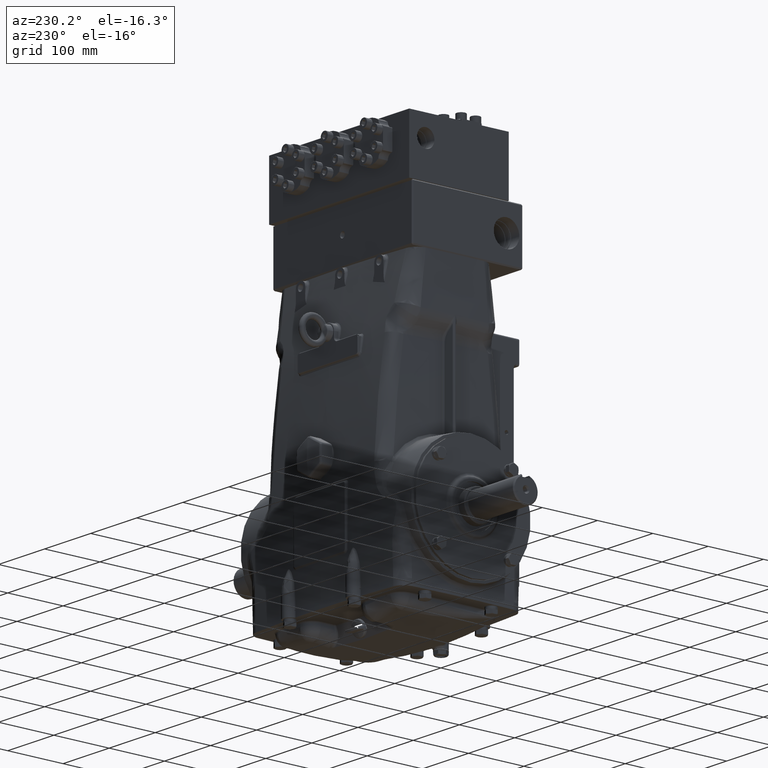
[diagram: clean part render]
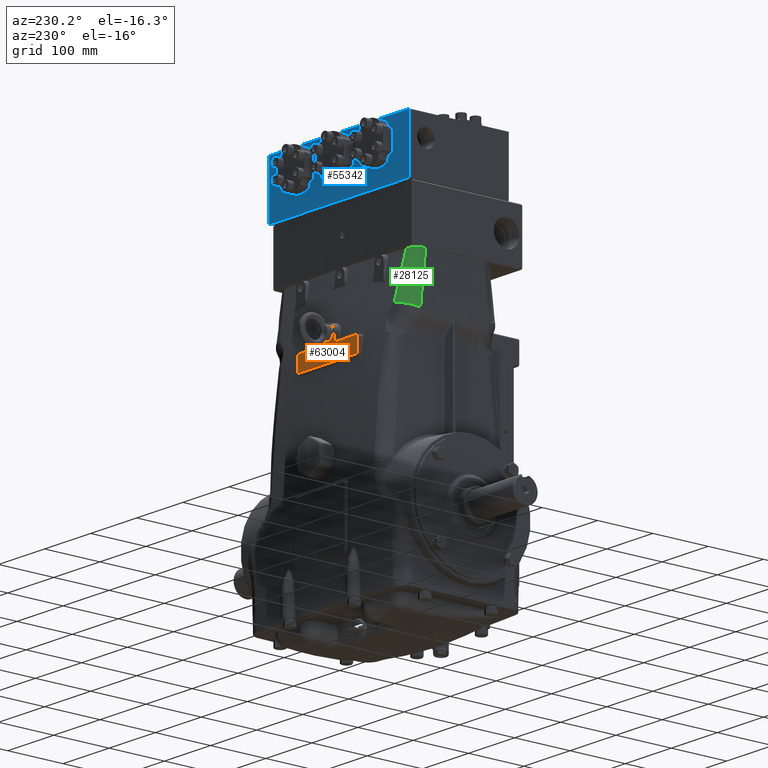
[diagram: same view with three faces highlighted in distinct colors, each labeled with its STEP entity id]
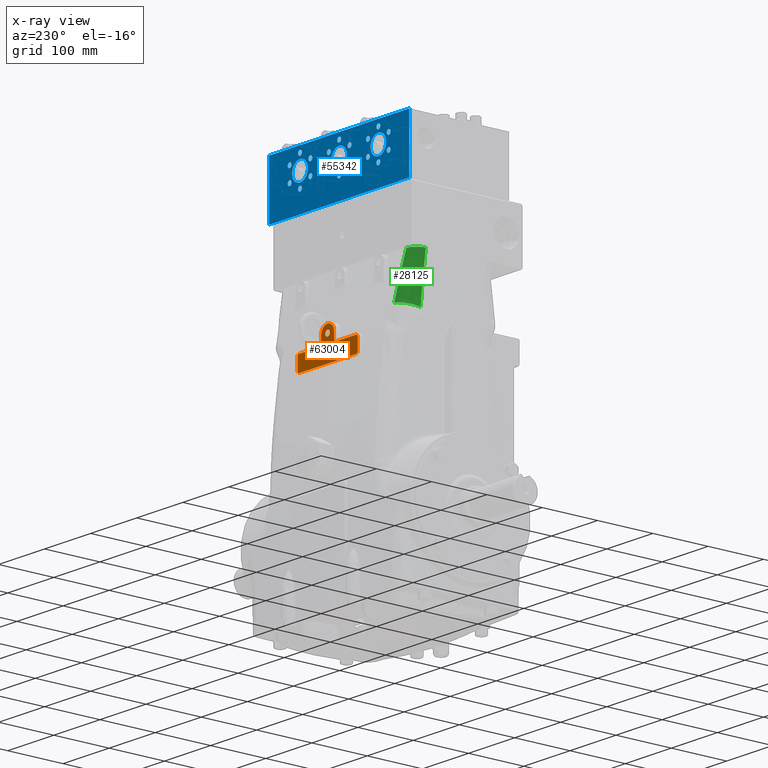
[diagram: x-ray of the same camera — body ghosted, the three highlighted faces saturated]
A machine part, auxiliary view with three faces highlighted in distinct colors.
The next image is the same camera in x-ray (body ghosted, the three faces saturated) — at least one of them is partly hidden behind the body in this view.
Their STEP definitions:

[orange] entity #63004 — the highlighted planar face has unit normal (0, 1, 0).
#1075 = ORIENTED_EDGE ( 'NONE', *, *, #35579, .T. ) ;
#1872 = CARTESIAN_POINT ( 'NONE',  ( 0.9802810140565616503, 4.133858267716536083, 9.094126591072960508 ) ) ;
#2280 = CARTESIAN_POINT ( 'NONE',  ( 1.188988124903846533, 4.133858267716535195, 9.094320801881412564 ) ) ;
#2426 = CARTESIAN_POINT ( 'NONE',  ( -0.9959313866224543954, 4.133858267716535195, 9.094143254473776139 ) ) ;
#2490 = DIRECTION ( 'NONE',  ( -1.000000000000000000, 0.000000000000000000, 0.000000000000000000 ) ) ;
#2699 = CARTESIAN_POINT ( 'NONE',  ( 0.3982999020837772464, 4.133858267716534307, 9.093598360942177550 ) ) ;
#2839 = CARTESIAN_POINT ( 'NONE',  ( -0.3818816199517248711, 4.133858267716535195, 9.093588027842615773 ) ) ;
#3637 = LINE ( 'NONE', #28850, #13399 ) ;
#4990 = VECTOR ( 'NONE', #41794, 39.37007874015748143 ) ;
#6338 = CARTESIAN_POINT ( 'NONE',  ( -2.440944881889762552, 4.133858267716535195, 10.07874015748031482 ) ) ;
#6615 = CARTESIAN_POINT ( 'NONE',  ( -0.3274819922074023171, 4.133858267716535195, 9.093556192556480511 ) ) ;
#6894 = EDGE_CURVE ( 'NONE', #33118, #23996, #34230, .T. ) ;
#7808 = AXIS2_PLACEMENT_3D ( 'NONE', #9386, #34571, #35799 ) ;
#8086 = CARTESIAN_POINT ( 'NONE',  ( 0.8834934596145679331, 4.133858267716533419, 9.094028889786148540 ) ) ;
#8239 = CARTESIAN_POINT ( 'NONE',  ( 0.000000000000000000, 4.133858267716535195, 10.82677165354330739 ) ) ;
#8479 = CARTESIAN_POINT ( 'NONE',  ( 1.164730722397753215, 4.133858267716536083, 9.094300357359696108 ) ) ;
#8484 = ORIENTED_EDGE ( 'NONE', *, *, #40780, .T. ) ;
#8621 = CARTESIAN_POINT ( 'NONE',  ( -1.149544005841487193, 4.133858267716535195, 9.094287205603944102 ) ) ;
#8887 = CARTESIAN_POINT ( 'NONE',  ( 0.4111578975462074625, 4.133858267716535195, 9.093606671106167383 ) ) ;
#9122 = DIRECTION ( 'NONE',  ( 0.000000000000000000, 0.000000000000000000, 1.000000000000000000 ) ) ;
#9386 = CARTESIAN_POINT ( 'NONE',  ( -2.440944881889762552, 4.133858267716535195, 9.212598425196851792 ) ) ;
#9837 = CARTESIAN_POINT ( 'NONE',  ( -0.3837028128199072019, 4.133858267716536083, 9.093589158094614433 ) ) ;
#10249 = CARTESIAN_POINT ( 'NONE',  ( -0.7698741356070581965, 4.133858267716536972, 9.093913313604154780 ) ) ;
#11102 = VECTOR ( 'NONE', #40235, 39.37007874015748143 ) ;
#11700 = CIRCLE ( 'NONE', #53828, 0.2362204724409451007 ) ;
#12424 = VECTOR ( 'NONE', #76932, 39.37007874015748143 ) ;
#12877 = CARTESIAN_POINT ( 'NONE',  ( 0.5511811023622041894, 4.133858267716535195, 10.82677165354330739 ) ) ;
#13117 = CARTESIAN_POINT ( 'NONE',  ( 5.736880786694952956E-15, 4.133858267716535195, 9.093465985549865849 ) ) ;
#13240 = CARTESIAN_POINT ( 'NONE',  ( -2.440944881889759888, 4.133858267716535195, 10.19685039370080126 ) ) ;
#13399 = VECTOR ( 'NONE', #53985, 39.37007874015748143 ) ;
#13694 = EDGE_CURVE ( 'NONE', #34158, #33118, #75099, .T. ) ;
#14275 = CARTESIAN_POINT ( 'NONE',  ( 1.160656440289638214, 4.133858267716535195, 9.094296853168390982 ) ) ;
#14423 = CARTESIAN_POINT ( 'NONE',  ( 5.736880786694952956E-15, 4.133858267716535195, 9.093465985549865849 ) ) ;
#14693 = CARTESIAN_POINT ( 'NONE',  ( 1.157157073558070959, 4.133858267716536083, 9.094293827604873925 ) ) ;
#14760 = CARTESIAN_POINT ( 'NONE',  ( -0.7874015748031496509, 4.133858267716535195, 10.43307086614173684 ) ) ;
#14832 = CARTESIAN_POINT ( 'NONE',  ( -1.542097647735386490, 4.133858267716535195, 9.094488188976377785 ) ) ;
#15098 = CARTESIAN_POINT ( 'NONE',  ( 0.4371216637488971046, 4.133858267716533419, 9.093624017480458122 ) ) ;
#15650 = CARTESIAN_POINT ( 'NONE',  ( -1.100342139291334620, 4.133858267716535195, 9.094243371752529725 ) ) ;
#16454 = CARTESIAN_POINT ( 'NONE',  ( -0.3844834872921935598, 4.133858267716536083, 9.093589643920774179 ) ) ;
#19338 = CARTESIAN_POINT ( 'NONE',  ( 0.2522748831231370614, 4.133858267716535195, 9.093507133967642986 ) ) ;
#19437 = ORIENTED_EDGE ( 'NONE', *, *, #68477, .T. ) ;
#19568 = CIRCLE ( 'NONE', #47208, 0.2362204724409451007 ) ;
#19667 = CARTESIAN_POINT ( 'NONE',  ( 0.5511811023622046335, 4.133858267716535195, 9.212598425196851792 ) ) ;
#19689 = CIRCLE ( 'NONE', #7808, 0.1181102362204714540 ) ;
#19696 = CARTESIAN_POINT ( 'NONE',  ( 1.488336584348830094, 4.133858267716535195, 9.094488068103443013 ) ) ;
#20487 = CARTESIAN_POINT ( 'NONE',  ( 1.130332734864853528, 4.133858267716536083, 9.094270560571553474 ) ) ;
#20755 = CARTESIAN_POINT ( 'NONE',  ( -2.440944881889762552, 4.133858267716535195, 9.212598425196851792 ) ) ;
#20896 = CARTESIAN_POINT ( 'NONE',  ( 0.3873445784241562606, 4.133858267716535195, 9.093591430800536557 ) ) ;
#21036 = CARTESIAN_POINT ( 'NONE',  ( -0.7628420238761505212, 4.133858267716536083, 9.093906335880022951 ) ) ;
#21240 = ORIENTED_EDGE ( 'NONE', *, *, #13694, .T. ) ;
#21306 = CARTESIAN_POINT ( 'NONE',  ( 0.7745627613779342280, 4.133858267716536083, 9.093918067172198860 ) ) ;
#21440 = CARTESIAN_POINT ( 'NONE',  ( -1.155569031737052610, 4.133858267716535195, 9.094292449951250745 ) ) ;
#21697 = CARTESIAN_POINT ( 'NONE',  ( 0.9644048085426827344, 4.133858267716535195, 9.094110630929808536 ) ) ;
#21843 = CARTESIAN_POINT ( 'NONE',  ( -1.142514893666673581, 4.133858267716533419, 9.094281053304722917 ) ) ;
#22810 = CIRCLE ( 'NONE', #33362, 0.2007874015748029040 ) ;
#23996 = VERTEX_POINT ( 'NONE', #25957 ) ;
#25302 = ORIENTED_EDGE ( 'NONE', *, *, #6894, .T. ) ;
#25309 = EDGE_CURVE ( 'NONE', #38609, #26805, #42762, .T. ) ;
#25320 = AXIS2_PLACEMENT_3D ( 'NONE', #66468, #65667, #9122 ) ;
#25957 = CARTESIAN_POINT ( 'NONE',  ( -2.440944881889762552, 4.133858267716535195, 10.19685039370078883 ) ) ;
#26805 = VERTEX_POINT ( 'NONE', #49276 ) ;
#27086 = CARTESIAN_POINT ( 'NONE',  ( 0.5998419687443656834, 4.133858267716534307, 9.093748425023402859 ) ) ;
#27228 = CARTESIAN_POINT ( 'NONE',  ( -0.6442308302738793957, 4.133858267716536083, 9.093792666769481059 ) ) ;
#27350 = DIRECTION ( 'NONE',  ( 0.000000000000000000, 1.000000000000000000, 0.000000000000000000 ) ) ;
#27491 = CARTESIAN_POINT ( 'NONE',  ( 0.9649980524406763793, 4.133858267716536083, 9.094111228973385863 ) ) ;
#27637 = CARTESIAN_POINT ( 'NONE',  ( -1.153058596190922325, 4.133858267716536083, 9.094290268043607739 ) ) ;
#27868 = LINE ( 'NONE', #52992, #42798 ) ;
#27900 = CARTESIAN_POINT ( 'NONE',  ( 0.7851044418244036427, 4.133858267716535195, 9.093928819583267043 ) ) ;
#28034 = CARTESIAN_POINT ( 'NONE',  ( -1.128456943413267410, 4.133858267716536083, 9.094268639026736878 ) ) ;
#28365 = VECTOR ( 'NONE', #2490, 39.37007874015748143 ) ;
#28532 = EDGE_CURVE ( 'NONE', #26805, #35497, #69074, .T. ) ;
#28850 = CARTESIAN_POINT ( 'NONE',  ( -2.440944881889762552, 4.133858267716535195, 9.094488188976377785 ) ) ;
#29634 = EDGE_CURVE ( 'NONE', #45135, #45965, #51832, .T. ) ;
#29688 = DIRECTION ( 'NONE',  ( 6.308085367188391227E-16, 0.000000000000000000, 1.000000000000000000 ) ) ;
#30162 = EDGE_LOOP ( 'NONE', ( #55789, #50226, #81225, #41022, #68775, #8484, #21240, #25302, #37021, #57641, #57578, #1075, #77633, #66082, #35365, #43808, #19437 ) ) ;
#30372 = CARTESIAN_POINT ( 'NONE',  ( 0.7874015748031496509, 4.133858267716535195, 10.43307086614173684 ) ) ;
#31188 = AXIS2_PLACEMENT_3D ( 'NONE', #8239, #32639, #70182 ) ;
#31825 = CARTESIAN_POINT ( 'NONE',  ( -0.3709651279562296011, 4.133858267716535195, 9.093581339917196971 ) ) ;
#32132 = DIRECTION ( 'NONE',  ( 0.000000000000000000, 0.000000000000000000, 1.000000000000000000 ) ) ;
#32639 = DIRECTION ( 'NONE',  ( 0.000000000000000000, 1.000000000000000000, 0.000000000000000000 ) ) ;
#33118 = VERTEX_POINT ( 'NONE', #51358 ) ;
#33281 = CARTESIAN_POINT ( 'NONE',  ( 0.7991600157623799383, 4.133858267716535195, 9.093943146917370157 ) ) ;
#33362 = AXIS2_PLACEMENT_3D ( 'NONE', #79042, #52593, #35268 ) ;
#33501 = CARTESIAN_POINT ( 'NONE',  ( -1.542097647735386490, 4.133858267716535195, 9.094488188976377785 ) ) ;
#33676 = CARTESIAN_POINT ( 'NONE',  ( 1.156778195555503430, 4.133858267716535195, 9.094293499146633764 ) ) ;
#33819 = CARTESIAN_POINT ( 'NONE',  ( -0.7687003902646052378, 4.133858267716536083, 9.093912147375334598 ) ) ;
#33943 = FACE_BOUND ( 'NONE', #68462, .T. ) ;
#34087 = CARTESIAN_POINT ( 'NONE',  ( 1.027759448111429830, 4.133858267716536083, 9.094173712519650010 ) ) ;
#34158 = VERTEX_POINT ( 'NONE', #64965 ) ;
#34230 = CIRCLE ( 'NONE', #56604, 0.1181102362204725503 ) ;
#34571 = DIRECTION ( 'NONE',  ( 0.000000000000000000, 1.000000000000000000, 0.000000000000000000 ) ) ;
#34687 = VERTEX_POINT ( 'NONE', #59080 ) ;
#34932 = AXIS2_PLACEMENT_3D ( 'NONE', #20755, #27350, #77708 ) ;
#35035 = CARTESIAN_POINT ( 'NONE',  ( -1.434567002860279272, 4.133858267716536083, 9.094487947210339485 ) ) ;
#35268 = DIRECTION ( 'NONE',  ( 0.000000000000000000, 0.000000000000000000, 1.000000000000000000 ) ) ;
#35365 = ORIENTED_EDGE ( 'NONE', *, *, #39581, .T. ) ;
#35449 = CARTESIAN_POINT ( 'NONE',  ( -0.7064420698035888124, 4.133858267716535195, 9.093851302596977604 ) ) ;
#35497 = VERTEX_POINT ( 'NONE', #33501 ) ;
#35579 = EDGE_CURVE ( 'NONE', #58591, #46379, #66720, .T. ) ;
#35799 = DIRECTION ( 'NONE',  ( 0.000000000000000000, 0.000000000000000000, 1.000000000000000000 ) ) ;
#36911 = DIRECTION ( 'NONE',  ( 0.000000000000000000, 1.000000000000000000, 0.000000000000000000 ) ) ;
#37021 = ORIENTED_EDGE ( 'NONE', *, *, #44422, .T. ) ;
#37963 = VERTEX_POINT ( 'NONE', #60875 ) ;
#38001 = CARTESIAN_POINT ( 'NONE',  ( -0.2699595269892595684, 4.133858267716535195, 9.093526655768576106 ) ) ;
#38005 = VECTOR ( 'NONE', #70184, 39.37007874015748143 ) ;
#38565 = DIRECTION ( 'NONE',  ( 0.000000000000000000, 0.000000000000000000, 1.000000000000000000 ) ) ;
#38609 = VERTEX_POINT ( 'NONE', #49866 ) ;
#39347 = LINE ( 'NONE', #76540, #12424 ) ;
#39454 = CARTESIAN_POINT ( 'NONE',  ( 0.9658873793560325272, 4.133858267716536083, 9.094112125325791496 ) ) ;
#39579 = CARTESIAN_POINT ( 'NONE',  ( 0.000000000000000000, 4.133858267716535195, 11.02755905511811108 ) ) ;
#39581 = EDGE_CURVE ( 'NONE', #48788, #57849, #58181, .T. ) ;
#39597 = CARTESIAN_POINT ( 'NONE',  ( -0.1564747649425480558, 4.133858267716536972, 9.093481272568936902 ) ) ;
#39854 = CARTESIAN_POINT ( 'NONE',  ( 0.9679587029704274093, 4.133858267716535195, 9.094114211824008365 ) ) ;
#39915 = DIRECTION ( 'NONE',  ( -0.000000000000000000, -1.000000000000000000, -0.000000000000000000 ) ) ;
#40235 = DIRECTION ( 'NONE',  ( 0.000000000000000000, 0.000000000000000000, -1.000000000000000000 ) ) ;
#40258 = CARTESIAN_POINT ( 'NONE',  ( 1.086557121241399360, 4.133858267716535195, 9.094230578859681557 ) ) ;
#40401 = CARTESIAN_POINT ( 'NONE',  ( -0.7384460299040167541, 4.133858267716535195, 9.093882324251977067 ) ) ;
#40780 = EDGE_CURVE ( 'NONE', #37963, #34158, #19689, .T. ) ;
#41022 = ORIENTED_EDGE ( 'NONE', *, *, #28532, .T. ) ;
#41205 = CARTESIAN_POINT ( 'NONE',  ( -0.7705468987654998658, 4.133858267716536083, 9.093913982448675881 ) ) ;
#41533 = CARTESIAN_POINT ( 'NONE',  ( 2.440944881889764773, 4.133858267716535195, 9.212598425196851792 ) ) ;
#41615 = CARTESIAN_POINT ( 'NONE',  ( -0.3850039732166212758, 4.133858267716536083, 9.093589968123202638 ) ) ;
#41794 = DIRECTION ( 'NONE',  ( 0.000000000000000000, 0.000000000000000000, -1.000000000000000000 ) ) ;
#42239 = CARTESIAN_POINT ( 'NONE',  ( 2.440944881889764773, 4.133858267716535195, 10.19685039370078883 ) ) ;
#42361 = DIRECTION ( 'NONE',  ( 0.000000000000000000, 1.000000000000000000, 0.000000000000000000 ) ) ;
#42762 = B_SPLINE_CURVE_WITH_KNOTS ( 'NONE', 3,
 ( #76235, #19696, #44829, #70011, #70821, #2280, #45634, #8479, #14275, #58414, #65025, #14693, #33676, #20487, #40258, #34087, #58821, #1872, #78261, #39854, #39454, #27491, #21697, #46852, #64624, #8086, #52629, #33281, #27900, #77857, #21306, #46444, #71642, #77435, #59236, #27086, #65439, #15098, #8887, #2699, #53027, #52218, #20896, #46049, #71240, #19338, #58068, #13117 ),
 .UNSPECIFIED., .F., .F.,
 ( 4, 1, 1, 1, 1, 1, 1, 1, 1, 2, 2, 1, 1, 1, 1, 1, 1, 1, 2, 2, 1, 1, 1, 1, 1, 1, 2, 2, 1, 1, 1, 1, 1, 1, 1, 2, 2, 4 ),
 ( 0.000000000000000000, 0.1250000000000152101, 0.1875000000000225375, 0.2187500000000262013, 0.2343750000000280331, 0.2421875000000290878, 0.2460937500000296152, 0.2480468750000297540, 0.2490234375000297262, 0.2495117187500295874, 0.2500000000000294209, 0.3125000000000242584, 0.3437500000000215383, 0.3593750000000202061, 0.3671875000000195399, 0.3710937500000192624, 0.3730468750000192069, 0.3740234375000191513, 0.3745117187500190958, 0.3750000000000190403, 0.4375000000000233147, 0.4687500000000253131, 0.4843750000000264788, 0.4921875000000272005, 0.4960937500000275335, 0.4980468750000278666, 0.4990234375000278666, 0.5000000000000278666, 0.6250000000000146549, 0.6875000000000078826, 0.7187500000000045519, 0.7343750000000027756, 0.7421875000000017764, 0.7460937500000013323, 0.7480468750000011102, 0.7490234375000011102, 0.7500000000000011102, 1.000000000000000000 ),
 .UNSPECIFIED. ) ;
#42798 = VECTOR ( 'NONE', #67025, 39.37007874015748143 ) ;
#43568 = ORIENTED_EDGE ( 'NONE', *, *, #60511, .F. ) ;
#43808 = ORIENTED_EDGE ( 'NONE', *, *, #73556, .T. ) ;
#44422 = EDGE_CURVE ( 'NONE', #23996, #61022, #39347, .T. ) ;
#44753 = DIRECTION ( 'NONE',  ( 0.000000000000000000, 1.000000000000000000, 0.000000000000000000 ) ) ;
#44829 = CARTESIAN_POINT ( 'NONE',  ( 1.399825229840075291, 4.133858267716536083, 9.094463618992714160 ) ) ;
#44998 = EDGE_CURVE ( 'NONE', #46379, #63016, #71617, .T. ) ;
#45042 = LINE ( 'NONE', #46651, #28365 ) ;
#45135 = VERTEX_POINT ( 'NONE', #54236 ) ;
#45634 = CARTESIAN_POINT ( 'NONE',  ( 1.172852388022182613, 4.133858267716535195, 9.094307282795712766 ) ) ;
#45778 = CARTESIAN_POINT ( 'NONE',  ( -0.06187668614178140625, 4.133858267716536972, 9.093465841899815771 ) ) ;
#45801 = DIRECTION ( 'NONE',  ( 0.000000000000000000, 0.000000000000000000, 1.000000000000000000 ) ) ;
#45965 = VERTEX_POINT ( 'NONE', #72453 ) ;
#46049 = CARTESIAN_POINT ( 'NONE',  ( 0.3864342618674832530, 4.133858267716535195, 9.093590860986770608 ) ) ;
#46118 = CARTESIAN_POINT ( 'NONE',  ( -0.5511811023622046335, 4.133858267716535195, 10.43307086614173684 ) ) ;
#46379 = VERTEX_POINT ( 'NONE', #12877 ) ;
#46444 = CARTESIAN_POINT ( 'NONE',  ( 0.7730568070289383087, 4.133858267716536083, 9.093916530619868155 ) ) ;
#46651 = CARTESIAN_POINT ( 'NONE',  ( -2.440944881889762552, 4.133858267716535195, 9.094488188976377785 ) ) ;
#46709 = FACE_OUTER_BOUND ( 'NONE', #30162, .T. ) ;
#46830 = ORIENTED_EDGE ( 'NONE', *, *, #58458, .F. ) ;
#46852 = CARTESIAN_POINT ( 'NONE',  ( 0.9640620181075709727, 4.133858267716535195, 9.094110285291929330 ) ) ;
#47007 = EDGE_CURVE ( 'NONE', #79889, #58591, #27868, .T. ) ;
#47208 = AXIS2_PLACEMENT_3D ( 'NONE', #14760, #39915, #32132 ) ;
#47756 = EDGE_CURVE ( 'NONE', #45965, #38609, #45042, .T. ) ;
#48788 = VERTEX_POINT ( 'NONE', #57519 ) ;
#48811 = LINE ( 'NONE', #54985, #4990 ) ;
#48904 = DIRECTION ( 'NONE',  ( 0.000000000000000000, 0.000000000000000000, 1.000000000000000000 ) ) ;
#49276 = CARTESIAN_POINT ( 'NONE',  ( 5.736880786694952956E-15, 4.133858267716535195, 9.093465985549865849 ) ) ;
#49626 = VERTEX_POINT ( 'NONE', #57621 ) ;
#49866 = CARTESIAN_POINT ( 'NONE',  ( 1.542097647735324761, 4.133858267716535195, 9.094488188976381338 ) ) ;
#50226 = ORIENTED_EDGE ( 'NONE', *, *, #47756, .T. ) ;
#51358 = CARTESIAN_POINT ( 'NONE',  ( -2.559055118110235227, 4.133858267716535195, 10.07874015748031482 ) ) ;
#51832 = CIRCLE ( 'NONE', #74269, 0.1181102362204725503 ) ;
#52218 = CARTESIAN_POINT ( 'NONE',  ( 0.3887106063289818558, 4.133858267716536083, 9.093592287141827768 ) ) ;
#52593 = DIRECTION ( 'NONE',  ( -0.000000000000000000, 1.000000000000000000, -0.000000000000000000 ) ) ;
#52629 = CARTESIAN_POINT ( 'NONE',  ( 0.8272711636703790061, 4.133858267716536083, 9.093971769994743326 ) ) ;
#52767 = CARTESIAN_POINT ( 'NONE',  ( -0.8353029374486309333, 4.133858267716535195, 9.093978390316737048 ) ) ;
#52992 = CARTESIAN_POINT ( 'NONE',  ( -0.5511811023622046335, 4.133858267716535195, 9.212598425196851792 ) ) ;
#53027 = CARTESIAN_POINT ( 'NONE',  ( 0.3919018762622932806, 4.133858267716535195, 9.093594296615979289 ) ) ;
#53826 = EDGE_CURVE ( 'NONE', #63016, #48788, #11700, .T. ) ;
#53828 = AXIS2_PLACEMENT_3D ( 'NONE', #30372, #55070, #48904 ) ;
#53985 = DIRECTION ( 'NONE',  ( -1.000000000000000000, 0.000000000000000000, 0.000000000000000000 ) ) ;
#53987 = CARTESIAN_POINT ( 'NONE',  ( -1.044116916586993016, 4.133858267716536083, 9.094191082331246179 ) ) ;
#54236 = CARTESIAN_POINT ( 'NONE',  ( 2.559055118110237448, 4.133858267716535195, 9.212598425196851792 ) ) ;
#54286 = CARTESIAN_POINT ( 'NONE',  ( -0.5511811023622041894, 4.133858267716535195, 10.82677165354330739 ) ) ;
#54508 = VECTOR ( 'NONE', #29688, 39.37007874015748143 ) ;
#54985 = CARTESIAN_POINT ( 'NONE',  ( 2.559055118110237448, 4.133858267716535195, 9.212598425196851792 ) ) ;
#55070 = DIRECTION ( 'NONE',  ( -0.000000000000000000, -1.000000000000000000, -0.000000000000000000 ) ) ;
#55789 = ORIENTED_EDGE ( 'NONE', *, *, #29634, .T. ) ;
#56604 = AXIS2_PLACEMENT_3D ( 'NONE', #6338, #36911, #56672 ) ;
#56672 = DIRECTION ( 'NONE',  ( 0.000000000000000000, 0.000000000000000000, 1.000000000000000000 ) ) ;
#56957 = CARTESIAN_POINT ( 'NONE',  ( -0.3782407578173020424, 4.133858267716536083, 9.093585780708137278 ) ) ;
#57519 = CARTESIAN_POINT ( 'NONE',  ( 0.7874015748031495399, 4.133858267716535195, 10.19685039370079238 ) ) ;
#57578 = ORIENTED_EDGE ( 'NONE', *, *, #47007, .T. ) ;
#57621 = CARTESIAN_POINT ( 'NONE',  ( 2.559055118110237004, 4.133858267716535195, 10.07874015748031482 ) ) ;
#57641 = ORIENTED_EDGE ( 'NONE', *, *, #75814, .T. ) ;
#57696 = AXIS2_PLACEMENT_3D ( 'NONE', #75364, #44753, #38565 ) ;
#57849 = VERTEX_POINT ( 'NONE', #42239 ) ;
#58068 = CARTESIAN_POINT ( 'NONE',  ( 0.1237667169962618080, 4.133858267716535195, 9.093465698219716842 ) ) ;
#58181 = LINE ( 'NONE', #13240, #38005 ) ;
#58414 = CARTESIAN_POINT ( 'NONE',  ( 1.158615936911606248, 4.133858267716535195, 9.094295090704415330 ) ) ;
#58458 = EDGE_CURVE ( 'NONE', #34687, #65948, #60858, .T. ) ;
#58591 = VERTEX_POINT ( 'NONE', #54286 ) ;
#58821 = CARTESIAN_POINT ( 'NONE',  ( 0.9964290805707929355, 4.133858267716535195, 9.094142724097249442 ) ) ;
#59080 = CARTESIAN_POINT ( 'NONE',  ( 2.458936486476966997E-17, 4.133858267716535195, 10.62598425196850549 ) ) ;
#59236 = CARTESIAN_POINT ( 'NONE',  ( 0.7007538090610055947, 4.133858267716535195, 9.093842748530416742 ) ) ;
#59500 = CARTESIAN_POINT ( 'NONE',  ( 0.5511811023622046335, 4.133858267716535195, 10.43307086614173684 ) ) ;
#60511 = EDGE_CURVE ( 'NONE', #65948, #34687, #22810, .T. ) ;
#60604 = CARTESIAN_POINT ( 'NONE',  ( -1.155989281071704733, 4.133858267716535195, 9.094292814819917581 ) ) ;
#60858 = CIRCLE ( 'NONE', #25320, 0.2007874015748029040 ) ;
#60875 = CARTESIAN_POINT ( 'NONE',  ( -2.440944881889762552, 4.133858267716535195, 9.094488188976377785 ) ) ;
#61022 = VERTEX_POINT ( 'NONE', #67350 ) ;
#61857 = CARTESIAN_POINT ( 'NONE',  ( -2.559055118110235671, 4.133858267716535195, 9.212598425196851792 ) ) ;
#63004 = ADVANCED_FACE ( 'NONE', ( #46709, #33943 ), #65709, .T. ) ;
#63016 = VERTEX_POINT ( 'NONE', #59500 ) ;
#63162 = CARTESIAN_POINT ( 'NONE',  ( -0.3564382458651715324, 4.133858267716536083, 9.093572672247457689 ) ) ;
#64624 = CARTESIAN_POINT ( 'NONE',  ( 0.9316839992150588445, 4.133858267716536083, 9.094077632984514992 ) ) ;
#64965 = CARTESIAN_POINT ( 'NONE',  ( -2.559055118110235671, 4.133858267716535195, 9.212598425196851792 ) ) ;
#65025 = CARTESIAN_POINT ( 'NONE',  ( 1.157740714965884488, 4.133858267716535195, 9.094294333140927833 ) ) ;
#65164 = CARTESIAN_POINT ( 'NONE',  ( -0.5269950738990469841, 4.133858267716536083, 9.093689025044497498 ) ) ;
#65439 = CARTESIAN_POINT ( 'NONE',  ( 0.4900402972656102141, 4.133858267716535195, 9.093661614414363825 ) ) ;
#65667 = DIRECTION ( 'NONE',  ( -0.000000000000000000, 1.000000000000000000, -0.000000000000000000 ) ) ;
#65709 = PLANE ( 'NONE',  #34932 ) ;
#65948 = VERTEX_POINT ( 'NONE', #39579 ) ;
#66082 = ORIENTED_EDGE ( 'NONE', *, *, #53826, .T. ) ;
#66382 = CARTESIAN_POINT ( 'NONE',  ( -1.306058856742384977, 4.133858267716535195, 9.094422991332649531 ) ) ;
#66468 = CARTESIAN_POINT ( 'NONE',  ( 0.000000000000000000, 4.133858267716535195, 10.82677165354330739 ) ) ;
#66720 = CIRCLE ( 'NONE', #31188, 0.5511811023622051886 ) ;
#66790 = CARTESIAN_POINT ( 'NONE',  ( -0.7669407748629077926, 4.133858267716535195, 9.093910399933598399 ) ) ;
#67025 = DIRECTION ( 'NONE',  ( 0.000000000000000000, 0.000000000000000000, 1.000000000000000000 ) ) ;
#67350 = CARTESIAN_POINT ( 'NONE',  ( -0.7874015748031495399, 4.133858267716535195, 10.19685039370079238 ) ) ;
#68462 = EDGE_LOOP ( 'NONE', ( #43568, #46830 ) ) ;
#68477 = EDGE_CURVE ( 'NONE', #49626, #45135, #48811, .T. ) ;
#68775 = ORIENTED_EDGE ( 'NONE', *, *, #80620, .T. ) ;
#69074 = B_SPLINE_CURVE_WITH_KNOTS ( 'NONE', 3,
 ( #14423, #45778, #39597, #38001, #6615, #63162, #31825, #56957, #2839, #9837, #16454, #41615, #71387, #79234, #65164, #27228, #35449, #40401, #73008, #21036, #66790, #33819, #10249, #41205, #52767, #71779, #2426, #53987, #15650, #28034, #21843, #8621, #27637, #77997, #21440, #60604, #66382, #35035, #14832 ),
 .UNSPECIFIED., .F., .F.,
 ( 4, 1, 1, 1, 1, 1, 1, 1, 1, 2, 2, 1, 1, 1, 1, 1, 1, 1, 2, 2, 2, 1, 1, 1, 1, 1, 1, 2, 2, 4 ),
 ( 0.000000000000000000, 0.1249999999999968636, 0.1874999999999952816, 0.2187499999999945044, 0.2343749999999941713, 0.2421874999999940881, 0.2460937499999940603, 0.2480468749999939770, 0.2490234374999938660, 0.2495117187499938660, 0.2499999999999938938, 0.3750000000000001665, 0.4375000000000033862, 0.4687500000000049960, 0.4843750000000058287, 0.4921875000000063838, 0.4960937500000066058, 0.4980468750000067168, 0.4990234375000067724, 0.5000000000000068834, 0.6250000000000189848, 0.6875000000000252021, 0.7187500000000283107, 0.7343750000000297540, 0.7421875000000305311, 0.7460937500000307532, 0.7480468750000307532, 0.7490234375000307532, 0.7500000000000306422, 1.000000000000000000 ),
 .UNSPECIFIED. ) ;
#70011 = CARTESIAN_POINT ( 'NONE',  ( 1.282789903912423535, 4.133858267716535195, 9.094392626377899802 ) ) ;
#70182 = DIRECTION ( 'NONE',  ( 0.000000000000000000, 0.000000000000000000, 1.000000000000000000 ) ) ;
#70184 = DIRECTION ( 'NONE',  ( 1.000000000000000000, 0.000000000000000000, -2.643388153869418832E-15 ) ) ;
#70821 = CARTESIAN_POINT ( 'NONE',  ( 1.220829221198406200, 4.133858267716535195, 9.094346512907421243 ) ) ;
#71240 = CARTESIAN_POINT ( 'NONE',  ( 0.3860450046902269006, 4.133858267716535195, 9.093590617632806072 ) ) ;
#71387 = CARTESIAN_POINT ( 'NONE',  ( -0.3853162992382325736, 4.133858267716536083, 9.093590162873146809 ) ) ;
#71617 = LINE ( 'NONE', #19667, #11102 ) ;
#71642 = CARTESIAN_POINT ( 'NONE',  ( 0.7720528374629890278, 4.133858267716535195, 9.093915506204634625 ) ) ;
#71779 = CARTESIAN_POINT ( 'NONE',  ( -0.8995703507837171653, 4.133858267716536083, 9.094043587620838309 ) ) ;
#72453 = CARTESIAN_POINT ( 'NONE',  ( 2.440944881889764773, 4.133858267716535195, 9.094488188976377785 ) ) ;
#73008 = CARTESIAN_POINT ( 'NONE',  ( -0.7546725950381237835, 4.133858267716535195, 9.093898261014786044 ) ) ;
#73556 = EDGE_CURVE ( 'NONE', #57849, #49626, #80154, .T. ) ;
#74269 = AXIS2_PLACEMENT_3D ( 'NONE', #41533, #42361, #45801 ) ;
#75099 = LINE ( 'NONE', #61857, #54508 ) ;
#75364 = CARTESIAN_POINT ( 'NONE',  ( 2.440944881889764773, 4.133858267716535195, 10.07874015748031482 ) ) ;
#75814 = EDGE_CURVE ( 'NONE', #61022, #79889, #19568, .T. ) ;
#76235 = CARTESIAN_POINT ( 'NONE',  ( 1.542097647735324761, 4.133858267716535195, 9.094488188976381338 ) ) ;
#76540 = CARTESIAN_POINT ( 'NONE',  ( -2.440944881889765661, 4.133858267716535195, 10.19685039370078883 ) ) ;
#76932 = DIRECTION ( 'NONE',  ( 1.000000000000000000, 0.000000000000000000, 2.643388153869422382E-15 ) ) ;
#77435 = CARTESIAN_POINT ( 'NONE',  ( 0.7715980480442685696, 4.133858267716536083, 9.093915042134426585 ) ) ;
#77633 = ORIENTED_EDGE ( 'NONE', *, *, #44998, .T. ) ;
#77708 = DIRECTION ( 'NONE',  ( 0.000000000000000000, -0.000000000000000000, 1.000000000000000000 ) ) ;
#77857 = CARTESIAN_POINT ( 'NONE',  ( 0.7780766548594223453, 4.133858267716536083, 9.093921651967368902 ) ) ;
#77997 = CARTESIAN_POINT ( 'NONE',  ( -1.154564856539685103, 4.133858267716536083, 9.094291577579907582 ) ) ;
#78261 = CARTESIAN_POINT ( 'NONE',  ( 0.9720862601134677705, 4.133858267716535195, 9.094118364857537884 ) ) ;
#79042 = CARTESIAN_POINT ( 'NONE',  ( 0.000000000000000000, 4.133858267716535195, 10.82677165354330739 ) ) ;
#79234 = CARTESIAN_POINT ( 'NONE',  ( -0.4388273787513364832, 4.133858267716535195, 9.093623554874518788 ) ) ;
#79889 = VERTEX_POINT ( 'NONE', #46118 ) ;
#80154 = CIRCLE ( 'NONE', #57696, 0.1181102362204725503 ) ;
#80620 = EDGE_CURVE ( 'NONE', #35497, #37963, #3637, .T. ) ;
#81225 = ORIENTED_EDGE ( 'NONE', *, *, #25309, .T. ) ;

[blue] entity #55342 — the highlighted planar face has unit normal (0, -1, 0).
#79 = CARTESIAN_POINT ( 'NONE',  ( 4.232939389700606903, 3.307086614173229133, 20.30511811023621860 ) ) ;
#85 = CIRCLE ( 'NONE', #64643, 0.1673228346456683557 ) ;
#96 = EDGE_CURVE ( 'NONE', #15045, #31961, #30934, .T. ) ;
#232 = VERTEX_POINT ( 'NONE', #17755 ) ;
#284 = VERTEX_POINT ( 'NONE', #70097 ) ;
#715 = EDGE_LOOP ( 'NONE', ( #34831, #67495 ) ) ;
#778 = VERTEX_POINT ( 'NONE', #33356 ) ;
#1004 = AXIS2_PLACEMENT_3D ( 'NONE', #20004, #64523, #6374 ) ;
#1090 = EDGE_CURVE ( 'NONE', #29236, #65340, #56033, .T. ) ;
#1406 = EDGE_LOOP ( 'NONE', ( #33939, #10960 ) ) ;
#1656 = VERTEX_POINT ( 'NONE', #38842 ) ;
#1845 = DIRECTION ( 'NONE',  ( -0.000000000000000000, 1.000000000000000000, -0.000000000000000000 ) ) ;
#2021 = DIRECTION ( 'NONE',  ( -0.000000000000000000, 1.000000000000000000, -0.000000000000000000 ) ) ;
#2436 = CIRCLE ( 'NONE', #74968, 0.1673228346456683557 ) ;
#2518 = DIRECTION ( 'NONE',  ( 0.000000000000000000, 0.000000000000000000, 1.000000000000000000 ) ) ;
#2621 = ORIENTED_EDGE ( 'NONE', *, *, #15355, .F. ) ;
#3232 = EDGE_CURVE ( 'NONE', #14674, #778, #7154, .T. ) ;
#3250 = VERTEX_POINT ( 'NONE', #78961 ) ;
#3542 = AXIS2_PLACEMENT_3D ( 'NONE', #61627, #29456, #4240 ) ;
#3575 = CARTESIAN_POINT ( 'NONE',  ( 4.232939389700606903, 3.307086614173229133, 20.47244094488188537 ) ) ;
#3657 = CIRCLE ( 'NONE', #32696, 0.1673228346456683557 ) ;
#3746 = DIRECTION ( 'NONE',  ( 0.000000000000000000, 1.000000000000000000, 0.000000000000000000 ) ) ;
#3910 = CARTESIAN_POINT ( 'NONE',  ( 2.867733408181193556E-15, 3.307086614173229133, 22.17519685039370358 ) ) ;
#3925 = AXIS2_PLACEMENT_3D ( 'NONE', #4412, #4956, #23147 ) ;
#4040 = FACE_OUTER_BOUND ( 'NONE', #29643, .T. ) ;
#4240 = DIRECTION ( 'NONE',  ( 0.000000000000000000, 0.000000000000000000, 1.000000000000000000 ) ) ;
#4259 = CARTESIAN_POINT ( 'NONE',  ( -3.346456692913383879, 3.307086614173229133, 20.31496062992125928 ) ) ;
#4412 = CARTESIAN_POINT ( 'NONE',  ( 0.8864826967872245778, 3.307086614173229133, 21.49606299212598159 ) ) ;
#4447 = FACE_BOUND ( 'NONE', #19303, .T. ) ;
#4453 = EDGE_CURVE ( 'NONE', #41253, #53312, #69604, .T. ) ;
#4490 = EDGE_CURVE ( 'NONE', #27936, #42934, #43211, .T. ) ;
#4507 = CARTESIAN_POINT ( 'NONE',  ( 2.459973996126166185, 3.307086614173229133, 20.30511811023622570 ) ) ;
#4857 = FACE_BOUND ( 'NONE', #1406, .T. ) ;
#4956 = DIRECTION ( 'NONE',  ( -0.000000000000000000, 1.000000000000000000, -0.000000000000000000 ) ) ;
#5277 = FACE_BOUND ( 'NONE', #21004, .T. ) ;
#5685 = FACE_BOUND ( 'NONE', #18517, .T. ) ;
#6294 = VERTEX_POINT ( 'NONE', #4259 ) ;
#6374 = DIRECTION ( 'NONE',  ( 0.000000000000000000, 0.000000000000000000, 1.000000000000000000 ) ) ;
#7154 = LINE ( 'NONE', #63692, #22008 ) ;
#7177 = CARTESIAN_POINT ( 'NONE',  ( -2.459973996126161300, 3.307086614173229133, 21.49606299212598159 ) ) ;
#7427 = CARTESIAN_POINT ( 'NONE',  ( -2.459973996126165297, 3.307086614173229133, 20.47244094488188537 ) ) ;
#7437 = CARTESIAN_POINT ( 'NONE',  ( -3.346456692913383879, 3.307086614173229133, 20.98425196850393704 ) ) ;
#8095 = ORIENTED_EDGE ( 'NONE', *, *, #75065, .F. ) ;
#8221 = VERTEX_POINT ( 'NONE', #4507 ) ;
#8607 = CARTESIAN_POINT ( 'NONE',  ( 2.637517732974944678E-15, 3.307086614173229133, 19.79330708661417404 ) ) ;
#8630 = CARTESIAN_POINT ( 'NONE',  ( 4.232939389700606903, 3.307086614173229133, 20.47244094488188537 ) ) ;
#8781 = ORIENTED_EDGE ( 'NONE', *, *, #68523, .F. ) ;
#8946 = EDGE_LOOP ( 'NONE', ( #48570, #29687 ) ) ;
#9084 = VERTEX_POINT ( 'NONE', #79 ) ;
#9318 = AXIS2_PLACEMENT_3D ( 'NONE', #78175, #21225, #10023 ) ;
#9554 = CARTESIAN_POINT ( 'NONE',  ( 0.8864826967872245778, 3.307086614173229133, 21.66338582677165192 ) ) ;
#9591 = CARTESIAN_POINT ( 'NONE',  ( 4.232939389700606903, 3.307086614173229133, 20.63976377952755570 ) ) ;
#10018 = DIRECTION ( 'NONE',  ( 0.000000000000000000, 0.000000000000000000, 1.000000000000000000 ) ) ;
#10023 = DIRECTION ( 'NONE',  ( 0.000000000000000000, 0.000000000000000000, 1.000000000000000000 ) ) ;
#10222 = EDGE_CURVE ( 'NONE', #11419, #8221, #59585, .T. ) ;
#10241 = FACE_BOUND ( 'NONE', #24546, .T. ) ;
#10481 = DIRECTION ( 'NONE',  ( -0.000000000000000000, 1.000000000000000000, -0.000000000000000000 ) ) ;
#10644 = EDGE_CURVE ( 'NONE', #778, #11738, #23421, .T. ) ;
#10660 = FACE_BOUND ( 'NONE', #8946, .T. ) ;
#10811 = DIRECTION ( 'NONE',  ( -0.000000000000000000, 1.000000000000000000, -0.000000000000000000 ) ) ;
#10960 = ORIENTED_EDGE ( 'NONE', *, *, #35004, .F. ) ;
#11145 = EDGE_LOOP ( 'NONE', ( #36323, #33997 ) ) ;
#11218 = CARTESIAN_POINT ( 'NONE',  ( -0.8864826967872158070, 3.307086614173229133, 21.49606299212599225 ) ) ;
#11302 = CARTESIAN_POINT ( 'NONE',  ( -0.8864826967872158070, 3.307086614173229133, 21.32874015748032193 ) ) ;
#11344 = CARTESIAN_POINT ( 'NONE',  ( -3.346456692913383879, 3.307086614173229133, 20.98425196850393704 ) ) ;
#11368 = CARTESIAN_POINT ( 'NONE',  ( -0.8864826967872195818, 3.307086614173229133, 20.47244094488189603 ) ) ;
#11394 = CARTESIAN_POINT ( 'NONE',  ( 3.346456692913388320, 3.307086614173229133, 20.12795275590551114 ) ) ;
#11419 = VERTEX_POINT ( 'NONE', #54143 ) ;
#11448 = CARTESIAN_POINT ( 'NONE',  ( -4.232939389700606014, 3.307086614173229133, 20.47244094488189603 ) ) ;
#11738 = VERTEX_POINT ( 'NONE', #15589 ) ;
#11790 = CARTESIAN_POINT ( 'NONE',  ( 3.346456692913388320, 3.307086614173229133, 20.98425196850393704 ) ) ;
#11892 = FACE_BOUND ( 'NONE', #29685, .T. ) ;
#12008 = CIRCLE ( 'NONE', #9318, 0.1673228346456683557 ) ;
#12266 = DIRECTION ( 'NONE',  ( -0.000000000000000000, 1.000000000000000000, -0.000000000000000000 ) ) ;
#12506 = CIRCLE ( 'NONE', #32250, 0.1673228346456683557 ) ;
#12690 = EDGE_CURVE ( 'NONE', #53784, #67068, #71509, .T. ) ;
#12736 = DIRECTION ( 'NONE',  ( 0.000000000000000000, 0.000000000000000000, 1.000000000000000000 ) ) ;
#13038 = CARTESIAN_POINT ( 'NONE',  ( 3.346456692913388320, 3.307086614173229133, 19.96062992125984437 ) ) ;
#13480 = DIRECTION ( 'NONE',  ( 0.000000000000000000, 0.000000000000000000, 1.000000000000000000 ) ) ;
#13649 = CARTESIAN_POINT ( 'NONE',  ( 3.346456692913388320, 3.307086614173229133, 19.96062992125984437 ) ) ;
#13736 = EDGE_LOOP ( 'NONE', ( #14284, #70329 ) ) ;
#14284 = ORIENTED_EDGE ( 'NONE', *, *, #18012, .F. ) ;
#14315 = AXIS2_PLACEMENT_3D ( 'NONE', #11344, #62924, #74935 ) ;
#14339 = EDGE_CURVE ( 'NONE', #70099, #3250, #29979, .T. ) ;
#14431 = DIRECTION ( 'NONE',  ( -0.000000000000000000, 1.000000000000000000, -0.000000000000000000 ) ) ;
#14598 = DIRECTION ( 'NONE',  ( 0.000000000000000000, 0.000000000000000000, 1.000000000000000000 ) ) ;
#14674 = VERTEX_POINT ( 'NONE', #31317 ) ;
#14977 = EDGE_CURVE ( 'NONE', #26034, #30083, #3657, .T. ) ;
#15045 = VERTEX_POINT ( 'NONE', #11394 ) ;
#15230 = DIRECTION ( 'NONE',  ( -0.000000000000000000, 1.000000000000000000, -0.000000000000000000 ) ) ;
#15258 = DIRECTION ( 'NONE',  ( 0.000000000000000000, 0.000000000000000000, 1.000000000000000000 ) ) ;
#15355 = EDGE_CURVE ( 'NONE', #69310, #79368, #37998, .T. ) ;
#15589 = CARTESIAN_POINT ( 'NONE',  ( -5.984251968503935259, 3.307086614173229133, 18.50393700787401841 ) ) ;
#15621 = CARTESIAN_POINT ( 'NONE',  ( -2.459973996126161300, 3.307086614173229133, 21.32874015748031482 ) ) ;
#15626 = CIRCLE ( 'NONE', #14315, 0.6692913385826777528 ) ;
#15663 = CARTESIAN_POINT ( 'NONE',  ( 3.346456692913388320, 3.307086614173229133, 21.65354330708661479 ) ) ;
#16321 = CIRCLE ( 'NONE', #62467, 0.1673228346456683557 ) ;
#16344 = ORIENTED_EDGE ( 'NONE', *, *, #67273, .F. ) ;
#16724 = CARTESIAN_POINT ( 'NONE',  ( 0.8864826967872245778, 3.307086614173229133, 21.32874015748031482 ) ) ;
#16784 = EDGE_LOOP ( 'NONE', ( #74692, #42943 ) ) ;
#17352 = ORIENTED_EDGE ( 'NONE', *, *, #61112, .F. ) ;
#17755 = CARTESIAN_POINT ( 'NONE',  ( -4.232939389700602462, 3.307086614173229133, 21.32874015748032193 ) ) ;
#17779 = ORIENTED_EDGE ( 'NONE', *, *, #47200, .F. ) ;
#18012 = EDGE_CURVE ( 'NONE', #59875, #1656, #47433, .T. ) ;
#18517 = EDGE_LOOP ( 'NONE', ( #52167, #24619 ) ) ;
#19303 = EDGE_LOOP ( 'NONE', ( #42146, #53757 ) ) ;
#19493 = CIRCLE ( 'NONE', #80128, 0.1673228346456683557 ) ;
#20004 = CARTESIAN_POINT ( 'NONE',  ( 3.346456692913388764, 3.307086614173229133, 22.00787401574803326 ) ) ;
#20460 = DIRECTION ( 'NONE',  ( 0.000000000000000000, 0.000000000000000000, 1.000000000000000000 ) ) ;
#20476 = EDGE_CURVE ( 'NONE', #30083, #26034, #85, .T. ) ;
#20485 = AXIS2_PLACEMENT_3D ( 'NONE', #77745, #78559, #58714 ) ;
#20679 = EDGE_CURVE ( 'NONE', #69523, #20696, #12008, .T. ) ;
#20696 = VERTEX_POINT ( 'NONE', #30284 ) ;
#21004 = EDGE_LOOP ( 'NONE', ( #76974, #34745 ) ) ;
#21024 = AXIS2_PLACEMENT_3D ( 'NONE', #3575, #22188, #67146 ) ;
#21047 = DIRECTION ( 'NONE',  ( 0.000000000000000000, 0.000000000000000000, 1.000000000000000000 ) ) ;
#21225 = DIRECTION ( 'NONE',  ( -0.000000000000000000, 1.000000000000000000, -0.000000000000000000 ) ) ;
#21449 = CARTESIAN_POINT ( 'NONE',  ( 2.459973996126170181, 3.307086614173229133, 21.49606299212599225 ) ) ;
#21499 = VERTEX_POINT ( 'NONE', #54789 ) ;
#21872 = EDGE_CURVE ( 'NONE', #65340, #29236, #47746, .T. ) ;
#22008 = VECTOR ( 'NONE', #47544, 39.37007874015748143 ) ;
#22188 = DIRECTION ( 'NONE',  ( -0.000000000000000000, 1.000000000000000000, -0.000000000000000000 ) ) ;
#22470 = DIRECTION ( 'NONE',  ( -0.000000000000000000, 1.000000000000000000, -0.000000000000000000 ) ) ;
#22705 = DIRECTION ( 'NONE',  ( 0.000000000000000000, 0.000000000000000000, 1.000000000000000000 ) ) ;
#22820 = ORIENTED_EDGE ( 'NONE', *, *, #4490, .F. ) ;
#23029 = CARTESIAN_POINT ( 'NONE',  ( -2.459973996126161300, 3.307086614173229133, 21.49606299212598159 ) ) ;
#23046 = CARTESIAN_POINT ( 'NONE',  ( 0.8864826967872245778, 3.307086614173229133, 21.49606299212598159 ) ) ;
#23147 = DIRECTION ( 'NONE',  ( 0.000000000000000000, 0.000000000000000000, 1.000000000000000000 ) ) ;
#23331 = CIRCLE ( 'NONE', #69472, 0.1673228346456683557 ) ;
#23332 = CARTESIAN_POINT ( 'NONE',  ( 2.617026595587636362E-15, 3.307086614173229133, 19.96062992125984437 ) ) ;
#23421 = LINE ( 'NONE', #80404, #58340 ) ;
#23449 = CARTESIAN_POINT ( 'NONE',  ( -3.346456692913383879, 3.307086614173229133, 21.65354330708661479 ) ) ;
#24080 = DIRECTION ( 'NONE',  ( 0.000000000000000000, 0.000000000000000000, 1.000000000000000000 ) ) ;
#24275 = FACE_BOUND ( 'NONE', #30358, .T. ) ;
#24546 = EDGE_LOOP ( 'NONE', ( #51900, #63771 ) ) ;
#24608 = EDGE_LOOP ( 'NONE', ( #22820, #38508 ) ) ;
#24619 = ORIENTED_EDGE ( 'NONE', *, *, #41899, .F. ) ;
#24628 = AXIS2_PLACEMENT_3D ( 'NONE', #7437, #52790, #15258 ) ;
#24684 = DIRECTION ( 'NONE',  ( 0.000000000000000000, -0.000000000000000000, -1.000000000000000000 ) ) ;
#24739 = CIRCLE ( 'NONE', #60229, 0.6692913385826777528 ) ;
#24859 = DIRECTION ( 'NONE',  ( -0.000000000000000000, 1.000000000000000000, -0.000000000000000000 ) ) ;
#24976 = CIRCLE ( 'NONE', #21024, 0.1673228346456683557 ) ;
#25686 = VERTEX_POINT ( 'NONE', #50484 ) ;
#26034 = VERTEX_POINT ( 'NONE', #28469 ) ;
#26642 = EDGE_CURVE ( 'NONE', #31961, #15045, #29823, .T. ) ;
#26654 = EDGE_CURVE ( 'NONE', #73088, #11738, #34466, .T. ) ;
#27153 = AXIS2_PLACEMENT_3D ( 'NONE', #13038, #1845, #20460 ) ;
#27644 = DIRECTION ( 'NONE',  ( 0.000000000000000000, 0.000000000000000000, 1.000000000000000000 ) ) ;
#27711 = ORIENTED_EDGE ( 'NONE', *, *, #21872, .F. ) ;
#27936 = VERTEX_POINT ( 'NONE', #62053 ) ;
#28154 = CARTESIAN_POINT ( 'NONE',  ( -4.232939389700606014, 3.307086614173229133, 20.30511811023622570 ) ) ;
#28469 = CARTESIAN_POINT ( 'NONE',  ( 0.8864826967872206920, 3.307086614173229133, 20.63976377952755570 ) ) ;
#28790 = CARTESIAN_POINT ( 'NONE',  ( -0.8864826967872195818, 3.307086614173229133, 20.63976377952756280 ) ) ;
#28905 = CARTESIAN_POINT ( 'NONE',  ( 2.459973996126166185, 3.307086614173229133, 20.47244094488189603 ) ) ;
#28957 = AXIS2_PLACEMENT_3D ( 'NONE', #61414, #74650, #24684 ) ;
#29005 = ORIENTED_EDGE ( 'NONE', *, *, #61035, .F. ) ;
#29088 = CARTESIAN_POINT ( 'NONE',  ( -0.8864826967872158070, 3.307086614173229133, 21.66338582677165903 ) ) ;
#29236 = VERTEX_POINT ( 'NONE', #15663 ) ;
#29387 = CARTESIAN_POINT ( 'NONE',  ( -4.232939389700606014, 3.307086614173229133, 20.47244094488189603 ) ) ;
#29456 = DIRECTION ( 'NONE',  ( -0.000000000000000000, 1.000000000000000000, -0.000000000000000000 ) ) ;
#29643 = EDGE_LOOP ( 'NONE', ( #76829, #65816, #17779, #34625 ) ) ;
#29685 = EDGE_LOOP ( 'NONE', ( #43640, #68439 ) ) ;
#29687 = ORIENTED_EDGE ( 'NONE', *, *, #49567, .F. ) ;
#29823 = CIRCLE ( 'NONE', #27153, 0.1673228346456683557 ) ;
#29979 = CIRCLE ( 'NONE', #74789, 0.1673228346456683557 ) ;
#30053 = EDGE_LOOP ( 'NONE', ( #33897, #27711 ) ) ;
#30057 = CARTESIAN_POINT ( 'NONE',  ( 2.867733408181193556E-15, 3.307086614173229133, 22.00787401574803326 ) ) ;
#30083 = VERTEX_POINT ( 'NONE', #33557 ) ;
#30284 = CARTESIAN_POINT ( 'NONE',  ( 4.232939389700610455, 3.307086614173229133, 21.32874015748031482 ) ) ;
#30328 = ORIENTED_EDGE ( 'NONE', *, *, #55808, .F. ) ;
#30358 = EDGE_LOOP ( 'NONE', ( #2621, #31038 ) ) ;
#30442 = ORIENTED_EDGE ( 'NONE', *, *, #36860, .F. ) ;
#30502 = FACE_BOUND ( 'NONE', #51067, .T. ) ;
#30570 = DIRECTION ( 'NONE',  ( 0.000000000000000000, 0.000000000000000000, 1.000000000000000000 ) ) ;
#30657 = VERTEX_POINT ( 'NONE', #37525 ) ;
#30843 = CIRCLE ( 'NONE', #33420, 0.1673228346456683557 ) ;
#30859 = CARTESIAN_POINT ( 'NONE',  ( 2.867733408181193556E-15, 3.307086614173229133, 22.00787401574803326 ) ) ;
#30877 = DIRECTION ( 'NONE',  ( -0.000000000000000000, 1.000000000000000000, -0.000000000000000000 ) ) ;
#30894 = FACE_BOUND ( 'NONE', #38949, .T. ) ;
#30934 = CIRCLE ( 'NONE', #63819, 0.1673228346456683557 ) ;
#31026 = AXIS2_PLACEMENT_3D ( 'NONE', #29387, #55343, #68155 ) ;
#31038 = ORIENTED_EDGE ( 'NONE', *, *, #57264, .F. ) ;
#31248 = CIRCLE ( 'NONE', #72054, 0.1673228346456683557 ) ;
#31317 = CARTESIAN_POINT ( 'NONE',  ( 5.984251968503938812, 3.307086614173229133, 22.44094488188976655 ) ) ;
#31838 = CARTESIAN_POINT ( 'NONE',  ( -3.346456692913383879, 3.307086614173229133, 19.96062992125984437 ) ) ;
#31961 = VERTEX_POINT ( 'NONE', #78262 ) ;
#32143 = VERTEX_POINT ( 'NONE', #16724 ) ;
#32250 = AXIS2_PLACEMENT_3D ( 'NONE', #8630, #2021, #76788 ) ;
#32627 = DIRECTION ( 'NONE',  ( -0.000000000000000000, 1.000000000000000000, -0.000000000000000000 ) ) ;
#32696 = AXIS2_PLACEMENT_3D ( 'NONE', #65074, #46497, #71694 ) ;
#33295 = AXIS2_PLACEMENT_3D ( 'NONE', #11790, #38188, #57140 ) ;
#33356 = CARTESIAN_POINT ( 'NONE',  ( 5.984251968503938812, 3.307086614173229133, 18.50393700787401841 ) ) ;
#33420 = AXIS2_PLACEMENT_3D ( 'NONE', #61162, #74811, #42577 ) ;
#33557 = CARTESIAN_POINT ( 'NONE',  ( 0.8864826967872206920, 3.307086614173229133, 20.30511811023621860 ) ) ;
#33880 = CIRCLE ( 'NONE', #80037, 0.1673228346456683557 ) ;
#33897 = ORIENTED_EDGE ( 'NONE', *, *, #1090, .F. ) ;
#33939 = ORIENTED_EDGE ( 'NONE', *, *, #67073, .F. ) ;
#33997 = ORIENTED_EDGE ( 'NONE', *, *, #26642, .F. ) ;
#34225 = DIRECTION ( 'NONE',  ( 0.000000000000000000, 0.000000000000000000, 1.000000000000000000 ) ) ;
#34466 = LINE ( 'NONE', #47636, #66657 ) ;
#34625 = ORIENTED_EDGE ( 'NONE', *, *, #3232, .T. ) ;
#34745 = ORIENTED_EDGE ( 'NONE', *, *, #20476, .F. ) ;
#34831 = ORIENTED_EDGE ( 'NONE', *, *, #53879, .F. ) ;
#34850 = CARTESIAN_POINT ( 'NONE',  ( -3.346456692913383435, 3.307086614173229133, 22.00787401574803326 ) ) ;
#34898 = CARTESIAN_POINT ( 'NONE',  ( 3.346456692913388320, 3.307086614173229133, 20.31496062992125928 ) ) ;
#35004 = EDGE_CURVE ( 'NONE', #55083, #284, #78555, .T. ) ;
#35442 = FACE_BOUND ( 'NONE', #66860, .T. ) ;
#35459 = AXIS2_PLACEMENT_3D ( 'NONE', #40281, #39477, #52243 ) ;
#35675 = EDGE_CURVE ( 'NONE', #6294, #49290, #49658, .T. ) ;
#35977 = VERTEX_POINT ( 'NONE', #29088 ) ;
#36039 = DIRECTION ( 'NONE',  ( -0.000000000000000000, 1.000000000000000000, -0.000000000000000000 ) ) ;
#36211 = DIRECTION ( 'NONE',  ( 0.000000000000000000, 0.000000000000000000, 1.000000000000000000 ) ) ;
#36320 = CARTESIAN_POINT ( 'NONE',  ( 0.8864826967872206920, 3.307086614173229133, 20.47244094488188537 ) ) ;
#36323 = ORIENTED_EDGE ( 'NONE', *, *, #96, .F. ) ;
#36451 = CARTESIAN_POINT ( 'NONE',  ( -4.232939389700602462, 3.307086614173229133, 21.49606299212599225 ) ) ;
#36466 = CARTESIAN_POINT ( 'NONE',  ( 2.888224545568501873E-15, 3.307086614173229133, 21.84055118110236648 ) ) ;
#36527 = AXIS2_PLACEMENT_3D ( 'NONE', #48733, #3746, #42134 ) ;
#36860 = EDGE_CURVE ( 'NONE', #53312, #41253, #58993, .T. ) ;
#37459 = DIRECTION ( 'NONE',  ( -0.000000000000000000, 1.000000000000000000, -0.000000000000000000 ) ) ;
#37525 = CARTESIAN_POINT ( 'NONE',  ( -4.232939389700606014, 3.307086614173229133, 20.63976377952756280 ) ) ;
#37539 = CARTESIAN_POINT ( 'NONE',  ( 3.346456692913388764, 3.307086614173229133, 21.84055118110236648 ) ) ;
#37596 = CARTESIAN_POINT ( 'NONE',  ( -0.8864826967872195818, 3.307086614173229133, 20.30511811023622570 ) ) ;
#37846 = EDGE_LOOP ( 'NONE', ( #8781, #40203 ) ) ;
#37998 = CIRCLE ( 'NONE', #43279, 0.1673228346456683557 ) ;
#38188 = DIRECTION ( 'NONE',  ( 0.000000000000000000, 1.000000000000000000, 0.000000000000000000 ) ) ;
#38277 = EDGE_CURVE ( 'NONE', #1656, #59875, #41980, .T. ) ;
#38331 = CARTESIAN_POINT ( 'NONE',  ( 3.346456692913388764, 3.307086614173229133, 22.00787401574803326 ) ) ;
#38508 = ORIENTED_EDGE ( 'NONE', *, *, #65107, .F. ) ;
#38558 = EDGE_LOOP ( 'NONE', ( #47973, #16344 ) ) ;
#38842 = CARTESIAN_POINT ( 'NONE',  ( -3.346456692913383879, 3.307086614173229133, 19.79330708661417404 ) ) ;
#38882 = ORIENTED_EDGE ( 'NONE', *, *, #4453, .F. ) ;
#38949 = EDGE_LOOP ( 'NONE', ( #8095, #52602 ) ) ;
#39271 = CARTESIAN_POINT ( 'NONE',  ( -4.232939389700602462, 3.307086614173229133, 21.49606299212599225 ) ) ;
#39282 = AXIS2_PLACEMENT_3D ( 'NONE', #36451, #67791, #10018 ) ;
#39411 = DIRECTION ( 'NONE',  ( 0.000000000000000000, 0.000000000000000000, 1.000000000000000000 ) ) ;
#39477 = DIRECTION ( 'NONE',  ( -0.000000000000000000, 1.000000000000000000, -0.000000000000000000 ) ) ;
#40203 = ORIENTED_EDGE ( 'NONE', *, *, #68747, .F. ) ;
#40281 = CARTESIAN_POINT ( 'NONE',  ( -0.8864826967872158070, 3.307086614173229133, 21.49606299212599225 ) ) ;
#40393 = AXIS2_PLACEMENT_3D ( 'NONE', #11368, #62532, #61715 ) ;
#40457 = CIRCLE ( 'NONE', #3542, 0.1673228346456683557 ) ;
#40608 = VERTEX_POINT ( 'NONE', #28790 ) ;
#40698 = EDGE_CURVE ( 'NONE', #9084, #74445, #24976, .T. ) ;
#41253 = VERTEX_POINT ( 'NONE', #55057 ) ;
#41899 = EDGE_CURVE ( 'NONE', #62925, #30657, #73895, .T. ) ;
#41971 = CARTESIAN_POINT ( 'NONE',  ( -5.984251968503935259, 3.307086614173229133, 22.44094488188976655 ) ) ;
#41980 = CIRCLE ( 'NONE', #68335, 0.1673228346456683557 ) ;
#42134 = DIRECTION ( 'NONE',  ( 0.000000000000000000, 0.000000000000000000, 1.000000000000000000 ) ) ;
#42146 = ORIENTED_EDGE ( 'NONE', *, *, #12690, .F. ) ;
#42577 = DIRECTION ( 'NONE',  ( 0.000000000000000000, 0.000000000000000000, 1.000000000000000000 ) ) ;
#42664 = CARTESIAN_POINT ( 'NONE',  ( -2.459973996126165297, 3.307086614173229133, 20.47244094488188537 ) ) ;
#42934 = VERTEX_POINT ( 'NONE', #15621 ) ;
#42943 = ORIENTED_EDGE ( 'NONE', *, *, #40698, .F. ) ;
#43013 = CARTESIAN_POINT ( 'NONE',  ( 2.459973996126166185, 3.307086614173229133, 20.47244094488189603 ) ) ;
#43040 = CIRCLE ( 'NONE', #74706, 0.1673228346456683557 ) ;
#43211 = CIRCLE ( 'NONE', #80197, 0.1673228346456683557 ) ;
#43252 = FACE_BOUND ( 'NONE', #11145, .T. ) ;
#43279 = AXIS2_PLACEMENT_3D ( 'NONE', #34850, #10481, #67839 ) ;
#43640 = ORIENTED_EDGE ( 'NONE', *, *, #20679, .F. ) ;
#43839 = VERTEX_POINT ( 'NONE', #8607 ) ;
#44716 = ORIENTED_EDGE ( 'NONE', *, *, #55348, .F. ) ;
#44842 = CARTESIAN_POINT ( 'NONE',  ( -5.984251968503935259, 3.307086614173229133, 22.44094488188976655 ) ) ;
#45670 = CARTESIAN_POINT ( 'NONE',  ( -2.459973996126165297, 3.307086614173229133, 20.30511811023621860 ) ) ;
#46391 = CARTESIAN_POINT ( 'NONE',  ( 4.232939389700610455, 3.307086614173229133, 21.49606299212598159 ) ) ;
#46497 = DIRECTION ( 'NONE',  ( -0.000000000000000000, 1.000000000000000000, -0.000000000000000000 ) ) ;
#46579 = CARTESIAN_POINT ( 'NONE',  ( -3.346456692913383435, 3.307086614173229133, 22.00787401574803326 ) ) ;
#46877 = CARTESIAN_POINT ( 'NONE',  ( 4.232939389700610455, 3.307086614173229133, 21.66338582677165192 ) ) ;
#47105 = AXIS2_PLACEMENT_3D ( 'NONE', #38331, #70900, #12736 ) ;
#47160 = VERTEX_POINT ( 'NONE', #77946 ) ;
#47197 = DIRECTION ( 'NONE',  ( 0.000000000000000000, 0.000000000000000000, 1.000000000000000000 ) ) ;
#47200 = EDGE_CURVE ( 'NONE', #14674, #73088, #54340, .T. ) ;
#47346 = DIRECTION ( 'NONE',  ( -1.000000000000000000, -0.000000000000000000, -0.000000000000000000 ) ) ;
#47433 = CIRCLE ( 'NONE', #57973, 0.1673228346456683557 ) ;
#47544 = DIRECTION ( 'NONE',  ( -0.000000000000000000, -0.000000000000000000, -1.000000000000000000 ) ) ;
#47636 = CARTESIAN_POINT ( 'NONE',  ( -5.984251968503935259, 3.307086614173229133, 22.44094488188976655 ) ) ;
#47746 = CIRCLE ( 'NONE', #33295, 0.6692913385826777528 ) ;
#47858 = DIRECTION ( 'NONE',  ( -0.000000000000000000, 1.000000000000000000, -0.000000000000000000 ) ) ;
#47973 = ORIENTED_EDGE ( 'NONE', *, *, #74872, .F. ) ;
#48202 = DIRECTION ( 'NONE',  ( -0.000000000000000000, 1.000000000000000000, -0.000000000000000000 ) ) ;
#48356 = DIRECTION ( 'NONE',  ( 0.000000000000000000, 0.000000000000000000, 1.000000000000000000 ) ) ;
#48570 = ORIENTED_EDGE ( 'NONE', *, *, #66496, .F. ) ;
#48616 = FACE_BOUND ( 'NONE', #24608, .T. ) ;
#48733 = CARTESIAN_POINT ( 'NONE',  ( 2.458353549041431401E-15, 3.307086614173229133, 20.98425196850393704 ) ) ;
#49047 = CARTESIAN_POINT ( 'NONE',  ( 2.540318098590663485E-15, 3.307086614173229133, 20.31496062992125928 ) ) ;
#49290 = VERTEX_POINT ( 'NONE', #23449 ) ;
#49567 = EDGE_CURVE ( 'NONE', #59014, #40608, #43040, .T. ) ;
#49658 = CIRCLE ( 'NONE', #24628, 0.6692913385826777528 ) ;
#50484 = CARTESIAN_POINT ( 'NONE',  ( 2.617026595587636362E-15, 3.307086614173229133, 20.12795275590551114 ) ) ;
#50778 = DIRECTION ( 'NONE',  ( 0.000000000000000000, 0.000000000000000000, 1.000000000000000000 ) ) ;
#50997 = CIRCLE ( 'NONE', #36527, 0.6692913385826777528 ) ;
#51067 = EDGE_LOOP ( 'NONE', ( #29005, #69143 ) ) ;
#51900 = ORIENTED_EDGE ( 'NONE', *, *, #10222, .F. ) ;
#52126 = DIRECTION ( 'NONE',  ( -0.000000000000000000, 1.000000000000000000, -0.000000000000000000 ) ) ;
#52167 = ORIENTED_EDGE ( 'NONE', *, *, #63046, .F. ) ;
#52243 = DIRECTION ( 'NONE',  ( 0.000000000000000000, 0.000000000000000000, 1.000000000000000000 ) ) ;
#52602 = ORIENTED_EDGE ( 'NONE', *, *, #14339, .F. ) ;
#52740 = AXIS2_PLACEMENT_3D ( 'NONE', #11448, #81222, #61798 ) ;
#52790 = DIRECTION ( 'NONE',  ( 0.000000000000000000, 1.000000000000000000, 0.000000000000000000 ) ) ;
#52811 = EDGE_CURVE ( 'NONE', #8221, #11419, #19493, .T. ) ;
#53255 = DIRECTION ( 'NONE',  ( -0.000000000000000000, 1.000000000000000000, -0.000000000000000000 ) ) ;
#53312 = VERTEX_POINT ( 'NONE', #37539 ) ;
#53313 = VECTOR ( 'NONE', #47346, 39.37007874015748143 ) ;
#53752 = CIRCLE ( 'NONE', #39282, 0.1673228346456683557 ) ;
#53757 = ORIENTED_EDGE ( 'NONE', *, *, #65112, .F. ) ;
#53784 = VERTEX_POINT ( 'NONE', #3910 ) ;
#53879 = EDGE_CURVE ( 'NONE', #49290, #6294, #15626, .T. ) ;
#53897 = EDGE_CURVE ( 'NONE', #25686, #43839, #69712, .T. ) ;
#54143 = CARTESIAN_POINT ( 'NONE',  ( 2.459973996126166185, 3.307086614173229133, 20.63976377952756280 ) ) ;
#54340 = LINE ( 'NONE', #41971, #53313 ) ;
#54441 = DIRECTION ( 'NONE',  ( -0.000000000000000000, 1.000000000000000000, -0.000000000000000000 ) ) ;
#54789 = CARTESIAN_POINT ( 'NONE',  ( 2.458353549041431401E-15, 3.307086614173229133, 21.65354330708661479 ) ) ;
#55057 = CARTESIAN_POINT ( 'NONE',  ( 3.346456692913388764, 3.307086614173229133, 22.17519685039370358 ) ) ;
#55083 = VERTEX_POINT ( 'NONE', #73950 ) ;
#55342 = ADVANCED_FACE ( 'NONE', ( #68014, #60595, #62244, #11892, #35442, #4857, #10241, #43252, #68436, #48616, #24275, #61824, #5685, #73841, #30894, #5277, #56015, #4447, #30502, #10660, #81250, #4040 ), #73419, .F. ) ;
#55343 = DIRECTION ( 'NONE',  ( -0.000000000000000000, 1.000000000000000000, -0.000000000000000000 ) ) ;
#55348 = EDGE_CURVE ( 'NONE', #62986, #32143, #75118, .T. ) ;
#55489 = AXIS2_PLACEMENT_3D ( 'NONE', #46579, #15230, #34225 ) ;
#55808 = EDGE_CURVE ( 'NONE', #32143, #62986, #67226, .T. ) ;
#56015 = FACE_BOUND ( 'NONE', #63901, .T. ) ;
#56033 = CIRCLE ( 'NONE', #20485, 0.6692913385826777528 ) ;
#56130 = AXIS2_PLACEMENT_3D ( 'NONE', #21449, #14431, #27644 ) ;
#57140 = DIRECTION ( 'NONE',  ( 0.000000000000000000, 0.000000000000000000, 1.000000000000000000 ) ) ;
#57264 = EDGE_CURVE ( 'NONE', #79368, #69310, #64682, .T. ) ;
#57973 = AXIS2_PLACEMENT_3D ( 'NONE', #80651, #36039, #24080 ) ;
#58340 = VECTOR ( 'NONE', #61373, 39.37007874015748143 ) ;
#58714 = DIRECTION ( 'NONE',  ( 0.000000000000000000, 0.000000000000000000, 1.000000000000000000 ) ) ;
#58993 = CIRCLE ( 'NONE', #47105, 0.1673228346456683557 ) ;
#59014 = VERTEX_POINT ( 'NONE', #37596 ) ;
#59189 = CARTESIAN_POINT ( 'NONE',  ( 2.458353549041431401E-15, 3.307086614173229133, 20.98425196850393704 ) ) ;
#59585 = CIRCLE ( 'NONE', #60948, 0.1673228346456683557 ) ;
#59875 = VERTEX_POINT ( 'NONE', #78216 ) ;
#59941 = VERTEX_POINT ( 'NONE', #11302 ) ;
#60229 = AXIS2_PLACEMENT_3D ( 'NONE', #59189, #72003, #39411 ) ;
#60478 = CIRCLE ( 'NONE', #35459, 0.1673228346456683557 ) ;
#60595 = FACE_BOUND ( 'NONE', #715, .T. ) ;
#60760 = DIRECTION ( 'NONE',  ( 0.000000000000000000, 0.000000000000000000, 1.000000000000000000 ) ) ;
#60948 = AXIS2_PLACEMENT_3D ( 'NONE', #28905, #54441, #22705 ) ;
#61035 = EDGE_CURVE ( 'NONE', #35977, #59941, #16321, .T. ) ;
#61112 = EDGE_CURVE ( 'NONE', #43839, #25686, #30843, .T. ) ;
#61162 = CARTESIAN_POINT ( 'NONE',  ( 2.617026595587636362E-15, 3.307086614173229133, 19.96062992125984437 ) ) ;
#61373 = DIRECTION ( 'NONE',  ( -1.000000000000000000, -0.000000000000000000, -0.000000000000000000 ) ) ;
#61414 = CARTESIAN_POINT ( 'NONE',  ( -5.984251968503935259, 3.307086614173229133, 22.44094488188976655 ) ) ;
#61627 = CARTESIAN_POINT ( 'NONE',  ( 2.459973996126170181, 3.307086614173229133, 21.49606299212599225 ) ) ;
#61715 = DIRECTION ( 'NONE',  ( 0.000000000000000000, 0.000000000000000000, 1.000000000000000000 ) ) ;
#61798 = DIRECTION ( 'NONE',  ( 0.000000000000000000, 0.000000000000000000, 1.000000000000000000 ) ) ;
#61824 = FACE_BOUND ( 'NONE', #37846, .T. ) ;
#62053 = CARTESIAN_POINT ( 'NONE',  ( -2.459973996126161300, 3.307086614173229133, 21.66338582677165192 ) ) ;
#62064 = EDGE_CURVE ( 'NONE', #74445, #9084, #12506, .T. ) ;
#62244 = FACE_BOUND ( 'NONE', #38558, .T. ) ;
#62383 = CARTESIAN_POINT ( 'NONE',  ( -3.346456692913383435, 3.307086614173229133, 21.84055118110236648 ) ) ;
#62467 = AXIS2_PLACEMENT_3D ( 'NONE', #11218, #10811, #48356 ) ;
#62532 = DIRECTION ( 'NONE',  ( -0.000000000000000000, 1.000000000000000000, -0.000000000000000000 ) ) ;
#62924 = DIRECTION ( 'NONE',  ( 0.000000000000000000, 1.000000000000000000, 0.000000000000000000 ) ) ;
#62925 = VERTEX_POINT ( 'NONE', #28154 ) ;
#62986 = VERTEX_POINT ( 'NONE', #9554 ) ;
#63046 = EDGE_CURVE ( 'NONE', #30657, #62925, #66560, .T. ) ;
#63173 = DIRECTION ( 'NONE',  ( -0.000000000000000000, 1.000000000000000000, -0.000000000000000000 ) ) ;
#63692 = CARTESIAN_POINT ( 'NONE',  ( 5.984251968503938812, 3.307086614173229133, 22.44094488188976655 ) ) ;
#63771 = ORIENTED_EDGE ( 'NONE', *, *, #52811, .F. ) ;
#63819 = AXIS2_PLACEMENT_3D ( 'NONE', #13649, #71424, #65624 ) ;
#63901 = EDGE_LOOP ( 'NONE', ( #44716, #30328 ) ) ;
#64523 = DIRECTION ( 'NONE',  ( -0.000000000000000000, 1.000000000000000000, -0.000000000000000000 ) ) ;
#64643 = AXIS2_PLACEMENT_3D ( 'NONE', #36320, #47858, #30570 ) ;
#64682 = CIRCLE ( 'NONE', #55489, 0.1673228346456683557 ) ;
#65000 = EDGE_CURVE ( 'NONE', #20696, #69523, #31248, .T. ) ;
#65041 = CARTESIAN_POINT ( 'NONE',  ( -0.8864826967872195818, 3.307086614173229133, 20.47244094488189603 ) ) ;
#65074 = CARTESIAN_POINT ( 'NONE',  ( 0.8864826967872206920, 3.307086614173229133, 20.47244094488188537 ) ) ;
#65107 = EDGE_CURVE ( 'NONE', #42934, #27936, #23331, .T. ) ;
#65112 = EDGE_CURVE ( 'NONE', #67068, #53784, #33880, .T. ) ;
#65340 = VERTEX_POINT ( 'NONE', #34898 ) ;
#65375 = DIRECTION ( 'NONE',  ( -0.000000000000000000, 1.000000000000000000, -0.000000000000000000 ) ) ;
#65624 = DIRECTION ( 'NONE',  ( 0.000000000000000000, 0.000000000000000000, 1.000000000000000000 ) ) ;
#65816 = ORIENTED_EDGE ( 'NONE', *, *, #26654, .F. ) ;
#66218 = DIRECTION ( 'NONE',  ( -0.000000000000000000, -0.000000000000000000, -1.000000000000000000 ) ) ;
#66496 = EDGE_CURVE ( 'NONE', #40608, #59014, #66781, .T. ) ;
#66560 = CIRCLE ( 'NONE', #31026, 0.1673228346456683557 ) ;
#66657 = VECTOR ( 'NONE', #66218, 39.37007874015748143 ) ;
#66781 = CIRCLE ( 'NONE', #40393, 0.1673228346456683557 ) ;
#66860 = EDGE_LOOP ( 'NONE', ( #38882, #30442 ) ) ;
#67068 = VERTEX_POINT ( 'NONE', #36466 ) ;
#67073 = EDGE_CURVE ( 'NONE', #284, #55083, #40457, .T. ) ;
#67146 = DIRECTION ( 'NONE',  ( 0.000000000000000000, 0.000000000000000000, 1.000000000000000000 ) ) ;
#67226 = CIRCLE ( 'NONE', #3925, 0.1673228346456683557 ) ;
#67273 = EDGE_CURVE ( 'NONE', #70928, #21499, #50997, .T. ) ;
#67471 = DIRECTION ( 'NONE',  ( -0.000000000000000000, 1.000000000000000000, -0.000000000000000000 ) ) ;
#67495 = ORIENTED_EDGE ( 'NONE', *, *, #35675, .F. ) ;
#67791 = DIRECTION ( 'NONE',  ( -0.000000000000000000, 1.000000000000000000, -0.000000000000000000 ) ) ;
#67839 = DIRECTION ( 'NONE',  ( 0.000000000000000000, 0.000000000000000000, 1.000000000000000000 ) ) ;
#68014 = FACE_BOUND ( 'NONE', #30053, .T. ) ;
#68155 = DIRECTION ( 'NONE',  ( 0.000000000000000000, 0.000000000000000000, 1.000000000000000000 ) ) ;
#68335 = AXIS2_PLACEMENT_3D ( 'NONE', #31838, #63173, #21047 ) ;
#68436 = FACE_BOUND ( 'NONE', #16784, .T. ) ;
#68439 = ORIENTED_EDGE ( 'NONE', *, *, #65000, .F. ) ;
#68523 = EDGE_CURVE ( 'NONE', #47160, #232, #53752, .T. ) ;
#68747 = EDGE_CURVE ( 'NONE', #232, #47160, #2436, .T. ) ;
#69143 = ORIENTED_EDGE ( 'NONE', *, *, #69323, .F. ) ;
#69310 = VERTEX_POINT ( 'NONE', #77879 ) ;
#69323 = EDGE_CURVE ( 'NONE', #59941, #35977, #60478, .T. ) ;
#69472 = AXIS2_PLACEMENT_3D ( 'NONE', #23029, #30877, #73399 ) ;
#69523 = VERTEX_POINT ( 'NONE', #46877 ) ;
#69554 = AXIS2_PLACEMENT_3D ( 'NONE', #42664, #22470, #79453 ) ;
#69604 = CIRCLE ( 'NONE', #1004, 0.1673228346456683557 ) ;
#69712 = CIRCLE ( 'NONE', #76275, 0.1673228346456683557 ) ;
#69900 = ORIENTED_EDGE ( 'NONE', *, *, #53897, .F. ) ;
#70029 = DIRECTION ( 'NONE',  ( -0.000000000000000000, 1.000000000000000000, -0.000000000000000000 ) ) ;
#70097 = CARTESIAN_POINT ( 'NONE',  ( 2.459973996126170181, 3.307086614173229133, 21.66338582677165903 ) ) ;
#70099 = VERTEX_POINT ( 'NONE', #45670 ) ;
#70329 = ORIENTED_EDGE ( 'NONE', *, *, #38277, .F. ) ;
#70900 = DIRECTION ( 'NONE',  ( -0.000000000000000000, 1.000000000000000000, -0.000000000000000000 ) ) ;
#70928 = VERTEX_POINT ( 'NONE', #49047 ) ;
#71424 = DIRECTION ( 'NONE',  ( -0.000000000000000000, 1.000000000000000000, -0.000000000000000000 ) ) ;
#71509 = CIRCLE ( 'NONE', #80786, 0.1673228346456683557 ) ;
#71694 = DIRECTION ( 'NONE',  ( 0.000000000000000000, 0.000000000000000000, 1.000000000000000000 ) ) ;
#72003 = DIRECTION ( 'NONE',  ( 0.000000000000000000, 1.000000000000000000, 0.000000000000000000 ) ) ;
#72054 = AXIS2_PLACEMENT_3D ( 'NONE', #46391, #65375, #47197 ) ;
#72998 = DIRECTION ( 'NONE',  ( 0.000000000000000000, 0.000000000000000000, 1.000000000000000000 ) ) ;
#73088 = VERTEX_POINT ( 'NONE', #44842 ) ;
#73399 = DIRECTION ( 'NONE',  ( 0.000000000000000000, 0.000000000000000000, 1.000000000000000000 ) ) ;
#73419 = PLANE ( 'NONE',  #28957 ) ;
#73537 = CIRCLE ( 'NONE', #69554, 0.1673228346456683557 ) ;
#73703 = DIRECTION ( 'NONE',  ( 0.000000000000000000, 0.000000000000000000, 1.000000000000000000 ) ) ;
#73841 = FACE_BOUND ( 'NONE', #13736, .T. ) ;
#73895 = CIRCLE ( 'NONE', #52740, 0.1673228346456683557 ) ;
#73950 = CARTESIAN_POINT ( 'NONE',  ( 2.459973996126170181, 3.307086614173229133, 21.32874015748032193 ) ) ;
#74445 = VERTEX_POINT ( 'NONE', #9591 ) ;
#74650 = DIRECTION ( 'NONE',  ( 0.000000000000000000, -1.000000000000000000, 0.000000000000000000 ) ) ;
#74692 = ORIENTED_EDGE ( 'NONE', *, *, #62064, .F. ) ;
#74706 = AXIS2_PLACEMENT_3D ( 'NONE', #65041, #70029, #13480 ) ;
#74789 = AXIS2_PLACEMENT_3D ( 'NONE', #7427, #32627, #50778 ) ;
#74811 = DIRECTION ( 'NONE',  ( -0.000000000000000000, 1.000000000000000000, -0.000000000000000000 ) ) ;
#74872 = EDGE_CURVE ( 'NONE', #21499, #70928, #24739, .T. ) ;
#74935 = DIRECTION ( 'NONE',  ( 0.000000000000000000, 0.000000000000000000, 1.000000000000000000 ) ) ;
#74968 = AXIS2_PLACEMENT_3D ( 'NONE', #39271, #53255, #2518 ) ;
#75065 = EDGE_CURVE ( 'NONE', #3250, #70099, #73537, .T. ) ;
#75118 = CIRCLE ( 'NONE', #81721, 0.1673228346456683557 ) ;
#76275 = AXIS2_PLACEMENT_3D ( 'NONE', #23332, #67471, #73703 ) ;
#76788 = DIRECTION ( 'NONE',  ( 0.000000000000000000, 0.000000000000000000, 1.000000000000000000 ) ) ;
#76829 = ORIENTED_EDGE ( 'NONE', *, *, #10644, .T. ) ;
#76974 = ORIENTED_EDGE ( 'NONE', *, *, #14977, .F. ) ;
#77745 = CARTESIAN_POINT ( 'NONE',  ( 3.346456692913388320, 3.307086614173229133, 20.98425196850393704 ) ) ;
#77879 = CARTESIAN_POINT ( 'NONE',  ( -3.346456692913383435, 3.307086614173229133, 22.17519685039370358 ) ) ;
#77946 = CARTESIAN_POINT ( 'NONE',  ( -4.232939389700602462, 3.307086614173229133, 21.66338582677165903 ) ) ;
#78175 = CARTESIAN_POINT ( 'NONE',  ( 4.232939389700610455, 3.307086614173229133, 21.49606299212598159 ) ) ;
#78216 = CARTESIAN_POINT ( 'NONE',  ( -3.346456692913383879, 3.307086614173229133, 20.12795275590551114 ) ) ;
#78262 = CARTESIAN_POINT ( 'NONE',  ( 3.346456692913388320, 3.307086614173229133, 19.79330708661417404 ) ) ;
#78555 = CIRCLE ( 'NONE', #56130, 0.1673228346456683557 ) ;
#78559 = DIRECTION ( 'NONE',  ( 0.000000000000000000, 1.000000000000000000, 0.000000000000000000 ) ) ;
#78961 = CARTESIAN_POINT ( 'NONE',  ( -2.459973996126165297, 3.307086614173229133, 20.63976377952755570 ) ) ;
#79368 = VERTEX_POINT ( 'NONE', #62383 ) ;
#79453 = DIRECTION ( 'NONE',  ( 0.000000000000000000, 0.000000000000000000, 1.000000000000000000 ) ) ;
#79829 = EDGE_LOOP ( 'NONE', ( #69900, #17352 ) ) ;
#80037 = AXIS2_PLACEMENT_3D ( 'NONE', #30057, #37459, #80424 ) ;
#80128 = AXIS2_PLACEMENT_3D ( 'NONE', #43013, #24859, #60760 ) ;
#80197 = AXIS2_PLACEMENT_3D ( 'NONE', #7177, #52126, #14598 ) ;
#80404 = CARTESIAN_POINT ( 'NONE',  ( -5.984251968503935259, 3.307086614173229133, 18.50393700787401841 ) ) ;
#80424 = DIRECTION ( 'NONE',  ( 0.000000000000000000, 0.000000000000000000, 1.000000000000000000 ) ) ;
#80651 = CARTESIAN_POINT ( 'NONE',  ( -3.346456692913383879, 3.307086614173229133, 19.96062992125984437 ) ) ;
#80786 = AXIS2_PLACEMENT_3D ( 'NONE', #30859, #12266, #36211 ) ;
#81222 = DIRECTION ( 'NONE',  ( -0.000000000000000000, 1.000000000000000000, -0.000000000000000000 ) ) ;
#81250 = FACE_BOUND ( 'NONE', #79829, .T. ) ;
#81721 = AXIS2_PLACEMENT_3D ( 'NONE', #23046, #48202, #72998 ) ;

[green] entity #28125 — the highlighted face is a freeform B-spline surface patch.
#62 = CARTESIAN_POINT ( 'NONE',  ( -5.914849519459009386, 2.062923769285555764, 14.76377952755905376 ) ) ;
#460 = CARTESIAN_POINT ( 'NONE',  ( -5.905613202200761691, 2.358834284329041076, 11.74368165415275733 ) ) ;
#735 = ORIENTED_EDGE ( 'NONE', *, *, #68952, .T. ) ;
#868 = CARTESIAN_POINT ( 'NONE',  ( -5.908673938971610085, 2.265066120374979342, 13.03264317263259819 ) ) ;
#912 = CARTESIAN_POINT ( 'NONE',  ( -5.879767995214635334, 3.162587132995285710, 12.86949753468266167 ) ) ;
#1207 = CARTESIAN_POINT ( 'NONE',  ( -5.131831588451555959, 3.005980297548772828, 13.97019410945438267 ) ) ;
#1267 = CARTESIAN_POINT ( 'NONE',  ( -5.908677572512333498, 2.264952495141791200, 13.03477871201685723 ) ) ;
#1319 = CARTESIAN_POINT ( 'NONE',  ( -5.868324098486308316, 3.436538707100978307, 11.28245888241146133 ) ) ;
#1331 = ORIENTED_EDGE ( 'NONE', *, *, #31128, .F. ) ;
#1555 = CARTESIAN_POINT ( 'NONE',  ( -5.668229812852135119, 2.624319720700929448, 14.76377952755905376 ) ) ;
#1669 = CARTESIAN_POINT ( 'NONE',  ( -5.905672257207958076, 2.357060701444123385, 11.75828390509639831 ) ) ;
#1712 = CARTESIAN_POINT ( 'NONE',  ( -5.120710757001378788, 3.034264079367035016, 13.83342152667016833 ) ) ;
#1950 = CARTESIAN_POINT ( 'NONE',  ( -5.453332407580689711, 2.771675151372924528, 14.76377952755905376 ) ) ;
#2064 = CARTESIAN_POINT ( 'NONE',  ( -5.907925971269326837, 2.288335852937914972, 12.59596694199654721 ) ) ;
#2356 = CARTESIAN_POINT ( 'NONE',  ( -5.689846565799667744, 2.602427342356467221, 14.76377952755905554 ) ) ;
#2410 = CARTESIAN_POINT ( 'NONE',  ( -5.584699211188659085, 3.147399294075683862, 11.46310489461806625 ) ) ;
#2826 = CARTESIAN_POINT ( 'NONE',  ( -5.266073377488568852, 3.362046666776338011, 11.53770281779277873 ) ) ;
#3172 = CARTESIAN_POINT ( 'NONE',  ( -5.232534852334648434, 2.838158930383748224, 14.76377952755905554 ) ) ;
#4147 = CARTESIAN_POINT ( 'NONE',  ( -5.023684900721711699, 3.171134934388645910, 13.14773324124499609 ) ) ;
#5031 = CARTESIAN_POINT ( 'NONE',  ( -5.912946418877834454, 2.127280557214457968, 14.44140605342365902 ) ) ;
#5381 = CARTESIAN_POINT ( 'NONE',  ( -5.216036395943292270, 3.382636811437145230, 11.54722049156790220 ) ) ;
#5388 = CARTESIAN_POINT ( 'NONE',  ( -4.924580169987033962, 3.317016221707170143, 12.37911037000458592 ) ) ;
#5789 = CARTESIAN_POINT ( 'NONE',  ( -5.005278436745298265, 3.439498342552275378, 11.58243594878231519 ) ) ;
#6198 = CARTESIAN_POINT ( 'NONE',  ( -4.948825239833901435, 3.447401824124947556, 11.59071699442808345 ) ) ;
#6204 = CARTESIAN_POINT ( 'NONE',  ( -5.101086199580545433, 3.058171706944638579, 13.71431557957002312 ) ) ;
#6267 = CARTESIAN_POINT ( 'NONE',  ( -5.912407176762159544, 2.145148159625524631, 14.33655159732869144 ) ) ;
#6672 = CARTESIAN_POINT ( 'NONE',  ( -5.907925995699470967, 2.288335096773560728, 12.59598016377677077 ) ) ;
#7066 = CARTESIAN_POINT ( 'NONE',  ( -5.908673567012193040, 2.265077751738842515, 13.03242445659455662 ) ) ;
#7116 = CARTESIAN_POINT ( 'NONE',  ( -5.185325325571241706, 2.838356162815268036, 14.78019648475138581 ) ) ;
#7474 = CARTESIAN_POINT ( 'NONE',  ( -5.907932892053354479, 2.288121631570745773, 12.59986493567412857 ) ) ;
#7519 = CARTESIAN_POINT ( 'NONE',  ( -5.164541999858275112, 2.936738434533107789, 14.30678451208300217 ) ) ;
#7873 = CARTESIAN_POINT ( 'NONE',  ( -5.907946300177029819, 2.287706566398291397, 12.60754454059181207 ) ) ;
#8272 = CARTESIAN_POINT ( 'NONE',  ( -5.908690296882330273, 2.264554550061988802, 13.04224164656727680 ) ) ;
#8319 = CARTESIAN_POINT ( 'NONE',  ( -5.893380228565853862, 2.789413303507760400, 14.76564271353230318 ) ) ;
#8969 = CARTESIAN_POINT ( 'NONE',  ( -5.914849519459009386, 2.062923769285555764, 14.76377952755905376 ) ) ;
#9015 = CARTESIAN_POINT ( 'NONE',  ( -5.592879451614143349, 3.139312626955532259, 11.46074997797244421 ) ) ;
#9382 = CARTESIAN_POINT ( 'NONE',  ( -5.681249131111601791, 2.611253824744535823, 14.76377952755905554 ) ) ;
#10771 = CARTESIAN_POINT ( 'NONE',  ( -4.949172090564206705, 3.277242264015674866, 12.59473463185866926 ) ) ;
#11232 = CARTESIAN_POINT ( 'NONE',  ( -5.910719505151603492, 2.200169575731908633, 13.92062736803391942 ) ) ;
#11582 = CARTESIAN_POINT ( 'NONE',  ( -5.076857798979546921, 3.425130134077910338, 11.57126704074311796 ) ) ;
#11591 = CARTESIAN_POINT ( 'NONE',  ( -4.913802699992940504, 3.336433346562228675, 12.27245772034349436 ) ) ;
#12407 = CARTESIAN_POINT ( 'NONE',  ( -5.018444413985876373, 3.178418012351344135, 13.11052001769411390 ) ) ;
#12790 = CARTESIAN_POINT ( 'NONE',  ( -5.057604005018011328, 3.429471160723429168, 11.57434702457179299 ) ) ;
#12796 = CARTESIAN_POINT ( 'NONE',  ( -5.180137066221424114, 2.892442693654131869, 14.52066343965347528 ) ) ;
#12859 = CARTESIAN_POINT ( 'NONE',  ( -5.907925908589608532, 2.288337793016503863, 12.59593263261130502 ) ) ;
#13196 = CARTESIAN_POINT ( 'NONE',  ( -5.070057791467116104, 3.426705746314662626, 11.57236170227895933 ) ) ;
#13202 = CARTESIAN_POINT ( 'NONE',  ( -5.132310754040153356, 3.005081227557392154, 13.97458332228943334 ) ) ;
#13270 = CARTESIAN_POINT ( 'NONE',  ( -5.907542385340669888, 2.300186964994692662, 12.39651488313214323 ) ) ;
#13318 = CARTESIAN_POINT ( 'NONE',  ( -4.875549008008499996, 3.502405908729313122, 11.29867192287536248 ) ) ;
#13993 = CARTESIAN_POINT ( 'NONE',  ( -5.551485303177223329, 3.178585887497241025, 11.47239008380356573 ) ) ;
#14066 = CARTESIAN_POINT ( 'NONE',  ( -5.906984198454624746, 2.317302330869617233, 12.16157686259979265 ) ) ;
#14113 = CARTESIAN_POINT ( 'NONE',  ( -5.903245328280699589, 2.429027964402563633, 11.28052331987952073 ) ) ;
#14361 = CARTESIAN_POINT ( 'NONE',  ( -5.835122323459665417, 2.393378446299524676, 14.76377952755905376 ) ) ;
#14404 = CARTESIAN_POINT ( 'NONE',  ( -5.688995835047186311, 3.033005360567477382, 11.43123038958168713 ) ) ;
#14477 = CARTESIAN_POINT ( 'NONE',  ( -5.907926379979780762, 2.288323202396558287, 12.59619183929495279 ) ) ;
#14529 = CARTESIAN_POINT ( 'NONE',  ( -5.886154691161721964, 2.981703273831198597, 13.81842915313974807 ) ) ;
#15222 = CARTESIAN_POINT ( 'NONE',  ( -5.265639047022845354, 3.362237185801131290, 11.53778733356411301 ) ) ;
#17031 = CARTESIAN_POINT ( 'NONE',  ( -5.910311584975073806, 2.213292162712717115, 13.79568169888957563 ) ) ;
#17459 = CARTESIAN_POINT ( 'NONE',  ( -5.912527729218598260, 2.141164361714797071, 14.36090416438256234 ) ) ;
#17869 = CARTESIAN_POINT ( 'NONE',  ( -5.912074343975505464, 2.156137704011513279, 14.26832902117558888 ) ) ;
#18229 = CARTESIAN_POINT ( 'NONE',  ( -4.919821522116118118, 3.325392908058514951, 12.33323513837594199 ) ) ;
#18288 = CARTESIAN_POINT ( 'NONE',  ( -5.910691973858821058, 2.201055658973258833, 13.91227466675942814 ) ) ;
#18631 = CARTESIAN_POINT ( 'NONE',  ( -4.915704080304775125, 3.450629435604365636, 11.59536634616097750 ) ) ;
#19014 = CARTESIAN_POINT ( 'NONE',  ( -4.902873697673988396, 3.451522551926476279, 11.59711451997821108 ) ) ;
#19085 = CARTESIAN_POINT ( 'NONE',  ( -5.908673636214894387, 2.265075587733624385, 13.03246514808705747 ) ) ;
#19418 = CARTESIAN_POINT ( 'NONE',  ( -5.075207988324224040, 3.425516005694789978, 11.57153321256096312 ) ) ;
#19425 = CARTESIAN_POINT ( 'NONE',  ( -5.132090318331822054, 3.005495338389349236, 13.97256169784786728 ) ) ;
#19486 = CARTESIAN_POINT ( 'NONE',  ( -5.904359374784609926, 2.396358114100670456, 11.47133474665070274 ) ) ;
#19536 = CARTESIAN_POINT ( 'NONE',  ( -4.986560622080855154, 3.222674255138423316, 12.88575456654492513 ) ) ;
#19895 = CARTESIAN_POINT ( 'NONE',  ( -5.907928574215944195, 2.288255284748716978, 12.59741784540901932 ) ) ;
#20165 = CARTESIAN_POINT ( 'NONE',  ( -5.776433591310897064, 2.499868863154867782, 14.76377952755905199 ) ) ;
#20282 = CARTESIAN_POINT ( 'NONE',  ( -5.907000699998951276, 2.316797915951817721, 12.16789749022835032 ) ) ;
#20736 = CARTESIAN_POINT ( 'NONE',  ( -4.897046326653974546, 3.368686379052702851, 12.09363941883155036 ) ) ;
#20975 = CARTESIAN_POINT ( 'NONE',  ( -5.508636203757916405, 2.744925502002867113, 14.76377952755905554 ) ) ;
#21143 = CARTESIAN_POINT ( 'NONE',  ( -5.912206697166975111, 2.151948128830377005, 14.30657796966575823 ) ) ;
#23571 = CARTESIAN_POINT ( 'NONE',  ( -5.028635759224336255, 3.164264603040205515, 13.18275471358236572 ) ) ;
#24045 = CARTESIAN_POINT ( 'NONE',  ( -5.910668487044859809, 2.201811330815916623, 13.90510261223999322 ) ) ;
#24381 = CARTESIAN_POINT ( 'NONE',  ( -4.925802573597842127, 3.314909096847209913, 12.39061829975569751 ) ) ;
#24446 = CARTESIAN_POINT ( 'NONE',  ( -5.909225665884736856, 2.247756914242586390, 13.33513139633698152 ) ) ;
#24860 = CARTESIAN_POINT ( 'NONE',  ( -5.910887622280017517, 2.194752194930855271, 13.97041162654521962 ) ) ;
#25202 = CARTESIAN_POINT ( 'NONE',  ( -5.076442746031371023, 3.425227415401971953, 11.57133403669872251 ) ) ;
#25276 = CARTESIAN_POINT ( 'NONE',  ( -5.913229139133507672, 2.117843687238893935, 14.49218836720061887 ) ) ;
#25676 = CARTESIAN_POINT ( 'NONE',  ( -5.906448200662091530, 2.333647360579240715, 11.97100916173336671 ) ) ;
#25725 = CARTESIAN_POINT ( 'NONE',  ( -4.941627852679784993, 3.282857233909547645, 12.56932634269046822 ) ) ;
#26012 = CARTESIAN_POINT ( 'NONE',  ( -4.878936326824202752, 3.452917195439405340, 11.60031905262361285 ) ) ;
#26081 = CARTESIAN_POINT ( 'NONE',  ( -5.907124578004150806, 2.313008229074265287, 12.21653243246279352 ) ) ;
#26131 = CARTESIAN_POINT ( 'NONE',  ( -5.907646200348552590, 2.297148171815059925, 12.38762160986817484 ) ) ;
#26417 = CARTESIAN_POINT ( 'NONE',  ( -5.903375805935151099, 2.425076266536521086, 11.30089893811133983 ) ) ;
#26538 = CARTESIAN_POINT ( 'NONE',  ( -5.870858134759076918, 3.384637623483602198, 11.60049129678033708 ) ) ;
#26768 = CARTESIAN_POINT ( 'NONE',  ( -5.731785825640779208, 2.557481735829569391, 14.76377952755905376 ) ) ;
#26816 = CARTESIAN_POINT ( 'NONE',  ( -5.593190843559621150, 3.139001879460302291, 11.46065985045443014 ) ) ;
#26929 = CARTESIAN_POINT ( 'NONE',  ( -5.175307605351867402, 2.904005048904589881, 14.46456208329546733 ) ) ;
#27332 = CARTESIAN_POINT ( 'NONE',  ( -4.875331744708049975, 3.450569755250787463, 11.61702798795573521 ) ) ;
#27571 = CARTESIAN_POINT ( 'NONE',  ( -5.694137710337813019, 2.597920194406839300, 14.76377952755905554 ) ) ;
#27622 = CARTESIAN_POINT ( 'NONE',  ( -5.766083086402627345, 2.916811684383569414, 11.40227389794569746 ) ) ;
#27975 = CARTESIAN_POINT ( 'NONE',  ( -5.419499884244285859, 2.786464736018629207, 14.76377952755905376 ) ) ;
#28017 = CARTESIAN_POINT ( 'NONE',  ( -5.644013583242527332, 3.088221399019464464, 11.44593957923513727 ) ) ;
#28125 = ADVANCED_FACE ( 'NONE', ( #58255 ), #58159, .T. ) ;
#29775 = CARTESIAN_POINT ( 'NONE',  ( -5.027491255404401116, 3.165852072169887954, 13.17466914531869371 ) ) ;
#30255 = CARTESIAN_POINT ( 'NONE',  ( -5.911119552194555204, 2.187260002439114004, 14.03590544019855457 ) ) ;
#30601 = CARTESIAN_POINT ( 'NONE',  ( -5.236181685047011314, 3.374660730742089942, 11.54343982271980273 ) ) ;
#30607 = CARTESIAN_POINT ( 'NONE',  ( -4.925393650704766202, 3.315612048474582352, 12.38678058458093645 ) ) ;
#30630 = CARTESIAN_POINT ( 'NONE',  ( -5.903375805935151099, 2.425076266536521086, 11.30089893811133983 ) ) ;
#30992 = CARTESIAN_POINT ( 'NONE',  ( -5.063280661080808542, 3.428237002143605494, 11.57344633590616745 ) ) ;
#30999 = CARTESIAN_POINT ( 'NONE',  ( -4.935799229983607539, 3.297793748164550287, 12.48400756346530649 ) ) ;
#31062 = CARTESIAN_POINT ( 'NONE',  ( -5.910666534261126870, 2.201874150668091890, 13.90450443823717919 ) ) ;
#31128 = EDGE_CURVE ( 'NONE', #36854, #78684, #56844, .T. ) ;
#31396 = CARTESIAN_POINT ( 'NONE',  ( -5.018282100622911912, 3.437291305666584584, 11.58047033662795222 ) ) ;
#31403 = CARTESIAN_POINT ( 'NONE',  ( -5.131309111114502386, 3.006956118024851854, 13.96542980457051364 ) ) ;
#31465 = CARTESIAN_POINT ( 'NONE',  ( -5.911609795965371283, 2.171353261600236007, 14.16385810397932410 ) ) ;
#31876 = CARTESIAN_POINT ( 'NONE',  ( -5.906991816552033647, 2.317069474539982465, 12.16449026980165726 ) ) ;
#31924 = CARTESIAN_POINT ( 'NONE',  ( -5.889655872968184269, 2.886672148875563781, 14.29218283121253208 ) ) ;
#32146 = CARTESIAN_POINT ( 'NONE',  ( -5.914849519459009386, 2.062923769285555764, 14.76377952755905376 ) ) ;
#32197 = VERTEX_POINT ( 'NONE', #54478 ) ;
#32200 = CARTESIAN_POINT ( 'NONE',  ( -5.154074509276424187, 3.404546835787964909, 11.55841401751887076 ) ) ;
#32269 = CARTESIAN_POINT ( 'NONE',  ( -5.906016381522832148, 2.346702566661738487, 11.84755615944344953 ) ) ;
#32597 = CARTESIAN_POINT ( 'NONE',  ( -5.567744144523757654, 3.163609631545833079, 11.46789381573073463 ) ) ;
#32606 = CARTESIAN_POINT ( 'NONE',  ( -5.132332338285701567, 3.005040636140080768, 13.97478147962561579 ) ) ;
#32669 = CARTESIAN_POINT ( 'NONE',  ( -5.907926101290532195, 2.288331828485016040, 12.59603828090800448 ) ) ;
#32721 = CARTESIAN_POINT ( 'NONE',  ( -5.902351693958388879, 2.454810165804787392, 11.12354089993150907 ) ) ;
#32956 = CARTESIAN_POINT ( 'NONE',  ( -5.845411006186185254, 2.371019325491242391, 14.76377952755905376 ) ) ;
#33011 = CARTESIAN_POINT ( 'NONE',  ( -5.479555298346567405, 3.238102569896509575, 11.49112732293715489 ) ) ;
#33080 = CARTESIAN_POINT ( 'NONE',  ( -5.905557928655715827, 2.360493260507960933, 11.73019312247536305 ) ) ;
#33474 = CARTESIAN_POINT ( 'NONE',  ( -5.907925864761807588, 2.288339149584246890, 12.59590867641229117 ) ) ;
#33518 = CARTESIAN_POINT ( 'NONE',  ( -5.909828517264556602, 2.228966093811306948, 13.67102729412266626 ) ) ;
#33756 = CARTESIAN_POINT ( 'NONE',  ( -5.571059439894776588, 2.707263438736309702, 14.76377952755904843 ) ) ;
#33799 = CARTESIAN_POINT ( 'NONE',  ( -5.397724550042958924, 3.295544224899292995, 11.51066844007581658 ) ) ;
#35952 = CARTESIAN_POINT ( 'NONE',  ( -4.877003644330629939, 3.452992667884452693, 11.60066926512785024 ) ) ;
#36854 = VERTEX_POINT ( 'NONE', #32146 ) ;
#37190 = CARTESIAN_POINT ( 'NONE',  ( -4.926110220598099332, 3.314381504512866616, 12.39349772705937980 ) ) ;
#37249 = CARTESIAN_POINT ( 'NONE',  ( -5.912405410717039622, 2.145206474836610866, 14.33619000024514634 ) ) ;
#37643 = CARTESIAN_POINT ( 'NONE',  ( -5.912433373583989571, 2.144282988386367883, 14.34189929391718721 ) ) ;
#37991 = CARTESIAN_POINT ( 'NONE',  ( -5.128033741077783425, 3.012976016020138648, 13.93602834202075513 ) ) ;
#38057 = CARTESIAN_POINT ( 'NONE',  ( -5.907018452873892933, 2.316255145442352337, 12.17473861268919322 ) ) ;
#38379 = CARTESIAN_POINT ( 'NONE',  ( -5.076690051837042361, 3.425169474249933455, 11.57129412149316217 ) ) ;
#38386 = CARTESIAN_POINT ( 'NONE',  ( -5.163144061382888950, 2.947077230900319478, 14.25774304390924385 ) ) ;
#38451 = CARTESIAN_POINT ( 'NONE',  ( -5.905078663283149787, 2.374872883555778191, 11.61408808050660291 ) ) ;
#38497 = CARTESIAN_POINT ( 'NONE',  ( -5.076100908187021865, 3.098377580161391975, 13.51780179869366805 ) ) ;
#38768 = CARTESIAN_POINT ( 'NONE',  ( -5.798189793312924500, 2.855859596083306418, 11.38803072339823785 ) ) ;
#38839 = CARTESIAN_POINT ( 'NONE',  ( -5.905583491758536141, 2.359726135792812762, 11.73641014919317271 ) ) ;
#39126 = CARTESIAN_POINT ( 'NONE',  ( -5.911966328789128866, 2.161811155246353255, 14.76377952755905376 ) ) ;
#39242 = CARTESIAN_POINT ( 'NONE',  ( -5.905788906318869103, 2.353554015934743227, 11.78772537108157081 ) ) ;
#39290 = CARTESIAN_POINT ( 'NONE',  ( -5.909213097416705196, 2.248207726002552587, 13.34996992752380507 ) ) ;
#39582 = CARTESIAN_POINT ( 'NONE',  ( -5.849289238964955118, 2.732127946368104077, 11.36064601824177167 ) ) ;
#39650 = CARTESIAN_POINT ( 'NONE',  ( -5.907774054123752450, 2.293038025342771569, 12.51302298081366082 ) ) ;
#39703 = CARTESIAN_POINT ( 'NONE',  ( -5.904205780340020304, 2.400825583751367898, 11.43709204300554738 ) ) ;
#39978 = CARTESIAN_POINT ( 'NONE',  ( -5.504927850879925977, 3.218393083883500871, 11.48473948779401610 ) ) ;
#42128 = CARTESIAN_POINT ( 'NONE',  ( -4.926154238370732408, 3.314306107129415757, 12.39390915531052606 ) ) ;
#42592 = CARTESIAN_POINT ( 'NONE',  ( -5.912464364493356328, 2.143259104953934013, 14.34818444621476452 ) ) ;
#43014 = CARTESIAN_POINT ( 'NONE',  ( -5.910678260647441284, 2.201496899145066966, 13.90809238845904972 ) ) ;
#43358 = CARTESIAN_POINT ( 'NONE',  ( -5.263803864981984937, 3.363040057261277305, 11.53814410467326823 ) ) ;
#43366 = CARTESIAN_POINT ( 'NONE',  ( -4.926007580662856711, 3.314557404689307152, 12.39253780929991144 ) ) ;
#43769 = CARTESIAN_POINT ( 'NONE',  ( -4.902883452252071450, 3.358076888718606323, 12.15223902093835306 ) ) ;
#44225 = CARTESIAN_POINT ( 'NONE',  ( -5.908809579912570165, 2.260821146657628233, 13.11103706078430342 ) ) ;
#44534 = B_SPLINE_CURVE_WITH_KNOTS ( 'NONE', 3,
 ( #77934, #3172, #65102, #59314, #27975, #52702, #1950, #20975, #33756, #58899, #1555, #9382, #2356, #27571, #26768, #20165, #58495, #14361, #32956, #64705, #39126, #8969 ),
 .UNSPECIFIED., .F., .F.,
 ( 4, 1, 1, 2, 2, 1, 1, 1, 2, 2, 1, 2, 2, 4 ),
 ( 0.000000000000000000, 0.1250000000000143496, 0.1875000000000213440, 0.2187500000000246192, 0.2500000000000278666, 0.3750000000000383582, 0.4375000000000436873, 0.4687500000000462963, 0.4843750000000466849, 0.5000000000000469624, 0.6250000000000363043, 0.6875000000000304201, 0.7500000000000244249, 1.000000000000000000 ),
 .UNSPECIFIED. ) ;
#44561 = CARTESIAN_POINT ( 'NONE',  ( -5.118676420831977047, 3.029335967139364705, 13.85598782958837560 ) ) ;
#44677 = CARTESIAN_POINT ( 'NONE',  ( -5.883987716729737194, 3.043264558312023471, 13.50234352107009350 ) ) ;
#45080 = CARTESIAN_POINT ( 'NONE',  ( -5.913921404336148768, 2.094745928070980590, 14.62084472770812837 ) ) ;
#45359 = CARTESIAN_POINT ( 'NONE',  ( -5.575704147121677501, 3.156121584029052851, 11.46566606688705647 ) ) ;
#45366 = CARTESIAN_POINT ( 'NONE',  ( -5.075266311196011237, 3.098027341864302286, 13.51699441553819980 ) ) ;
#45427 = CARTESIAN_POINT ( 'NONE',  ( -5.907927011945045770, 2.288303641488663498, 12.59654247832490093 ) ) ;
#45480 = CARTESIAN_POINT ( 'NONE',  ( -5.895960417086011596, 2.723600409506862885, 15.08097490665740459 ) ) ;
#45830 = CARTESIAN_POINT ( 'NONE',  ( -5.908681812763847851, 2.264819891135029462, 13.03726833530383367 ) ) ;
#46294 = CARTESIAN_POINT ( 'NONE',  ( -5.914956072182287805, 2.059530228165542542, 14.77778041190654434 ) ) ;
#48309 = CARTESIAN_POINT ( 'NONE',  ( -5.000078849880988940, 3.204082450246543701, 12.97847648007551236 ) ) ;
#49533 = CARTESIAN_POINT ( 'NONE',  ( -5.256284641337158448, 3.366293884187553154, 11.53960024432015175 ) ) ;
#49603 = CARTESIAN_POINT ( 'NONE',  ( -5.914316301299402667, 2.081233267886914540, 14.67785554985681529 ) ) ;
#49959 = CARTESIAN_POINT ( 'NONE',  ( -4.926183590047786609, 3.314255839630638079, 12.39418344857252663 ) ) ;
#50420 = CARTESIAN_POINT ( 'NONE',  ( -5.907925882226328085, 2.288338609018522263, 12.59591822003274331 ) ) ;
#50756 = CARTESIAN_POINT ( 'NONE',  ( -5.054124166664509588, 3.128921712657291909, 13.36267617988929501 ) ) ;
#50819 = CARTESIAN_POINT ( 'NONE',  ( -5.905555514685309149, 2.360565690588433352, 11.72960788464305715 ) ) ;
#51153 = CARTESIAN_POINT ( 'NONE',  ( -4.884491138399154941, 3.452667283638722662, 11.59959100200565985 ) ) ;
#51272 = CARTESIAN_POINT ( 'NONE',  ( -5.911517264726246168, 2.174410796057816952, 14.14824494702000734 ) ) ;
#51629 = CARTESIAN_POINT ( 'NONE',  ( -5.907992197049621197, 2.286285400491313347, 12.63404544797705498 ) ) ;
#51674 = CARTESIAN_POINT ( 'NONE',  ( -5.890863126342956946, 2.854545386397249196, 14.45003760087050004 ) ) ;
#52017 = CARTESIAN_POINT ( 'NONE',  ( -5.907053902575530202, 2.315170991092177388, 12.18852758404067060 ) ) ;
#52068 = CARTESIAN_POINT ( 'NONE',  ( -5.869573299978710246, 3.410820849078799011, 11.44150744085811056 ) ) ;
#52348 = CARTESIAN_POINT ( 'NONE',  ( -5.335439306880227051, 3.331591097413252989, 11.52420057679546694 ) ) ;
#52702 = CARTESIAN_POINT ( 'NONE',  ( -5.442054174582965587, 2.776815326288587737, 14.76377952755906264 ) ) ;
#54478 = CARTESIAN_POINT ( 'NONE',  ( -5.183405415249797699, 2.841738081440412511, 14.76377952755909462 ) ) ;
#55124 = EDGE_CURVE ( 'NONE', #64912, #32197, #59510, .T. ) ;
#55652 = ORIENTED_EDGE ( 'NONE', *, *, #55124, .F. ) ;
#55721 = CARTESIAN_POINT ( 'NONE',  ( -4.878332367497830724, 3.432379729718026073, 11.72482601415763170 ) ) ;
#56120 = CARTESIAN_POINT ( 'NONE',  ( -5.242603062963129723, 3.372041015670286690, 11.54222194840788340 ) ) ;
#56526 = CARTESIAN_POINT ( 'NONE',  ( -5.039213300599810097, 3.433290258325219835, 11.57723637475738698 ) ) ;
#56534 = CARTESIAN_POINT ( 'NONE',  ( -5.132283268173792656, 3.005132910666354462, 13.97433101746153383 ) ) ;
#56844 = B_SPLINE_CURVE_WITH_KNOTS ( 'NONE', 3,
 ( #62, #49603, #61581, #25276, #5031, #74009, #17459, #42592, #37643, #68606, #62808, #6267, #37249, #17869, #31465, #30255, #24860, #67765, #11232, #18288, #43014, #81020, #24045, #31062, #68185, #17031, #62005, #24446, #63605, #44225, #70612, #75635, #8272, #45830, #1267, #58618, #71021, #868, #19085, #7066, #69408, #64822, #69815, #51629, #7873, #7474, #19895, #45427, #14477, #32669, #2064, #12859, #50420, #33474, #6672, #39650, #13270, #76835, #26081, #52017, #38057, #20282, #31876, #63218, #58211, #14066, #57008, #57808, #25676, #32269, #39242, #1669, #460, #38839, #64410, #76043, #33080, #50819, #38451, #19486, #57406 ),
 .UNSPECIFIED., .F., .F.,
 ( 4, 2, 1, 1, 1, 1, 1, 1, 2, 2, 1, 1, 1, 1, 1, 1, 1, 1, 2, 2, 1, 1, 1, 1, 1, 1, 1, 1, 1, 1, 1, 2, 2, 2, 1, 1, 1, 1, 1, 1, 1, 1, 1, 2, 2, 1, 1, 1, 1, 1, 1, 1, 1, 2, 2, 1, 1, 1, 1, 1, 1, 1, 2, 2, 4 ),
 ( 0.000000000000000000, 0.06250000000417306467, 0.09375000000626051988, 0.1093750000073052536, 0.1171875000078276413, 0.1210937500080877111, 0.1230468750082188978, 0.1240234375082833046, 0.1245117187583155011, 0.1250000000083477114, 0.1875000000124950605, 0.2187500000145687351, 0.2343750000156064606, 0.2421875000161244351, 0.2460937500163843106, 0.2480468750165142622, 0.2490234375165783498, 0.2495117187666103797, 0.2497558593916264225, 0.2500000000166424097, 0.3750000000251201837, 0.4375000000293599589, 0.4687500000314789861, 0.4843750000325385274, 0.4921875000330675487, 0.4960937500333313377, 0.4980468750334631767, 0.4990234375335290684, 0.4995117187835613204, 0.4997558594085774186, 0.4998779297210862449, 0.4999389648773399641, 0.5000000000335935724, 0.5625000000370895537, 0.5937500000388373778, 0.6093750000397131217, 0.6171875000401509936, 0.6210937500403699296, 0.6230468750404793976, 0.6240234375405242506, 0.6245117187905466771, 0.6247558594155705469, 0.6248779297280825373, 0.6249389648843248768, 0.6250000000405671052, 0.6875000000336500827, 0.7187500000301906278, 0.7343750000284609003, 0.7421875000275949263, 0.7460937500271619394, 0.7480468750269454459, 0.7490234375268360889, 0.7495117187767814659, 0.7497558594017541544, 0.7500000000267267319, 0.8125000000201291206, 0.8437500000168303149, 0.8593750000151799684, 0.8671875000143547396, 0.8710937500139421807, 0.8730468750137347911, 0.8740234375136310963, 0.8745117187635792488, 0.8750000000135274014, 1.000000000000000000 ),
 .UNSPECIFIED. ) ;
#57008 = CARTESIAN_POINT ( 'NONE',  ( -5.906983724185893792, 2.317316826873552227, 12.16139571799301500 ) ) ;
#57406 = CARTESIAN_POINT ( 'NONE',  ( -5.903375805935151099, 2.425076266536521086, 11.30089893811133983 ) ) ;
#57451 = CARTESIAN_POINT ( 'NONE',  ( -5.874413212496081726, 3.303839795669138546, 12.07691178095931228 ) ) ;
#57730 = B_SPLINE_CURVE_WITH_KNOTS ( 'NONE', 3,
 ( #62739, #26012, #51153, #19014, #18631, #6198, #75968, #5789, #31396, #56526, #75565, #12790, #30992, #13196, #81779, #19418, #76366, #25202, #38379, #11582, #63539, #32200, #61933, #5381, #30601, #56120, #80953, #49533, #74753, #43358, #68537, #15222, #59368, #2826, #70142, #52348, #33799, #33011, #39978, #65152, #13993, #32597, #45359, #2410, #57740, #58950, #71768, #9015, #26816, #70951, #28017, #14404, #27622, #38768, #39582, #64756, #71371, #58146, #26417 ),
 .UNSPECIFIED., .F., .F.,
 ( 4, 2, 2, 2, 2, 2, 1, 1, 1, 1, 1, 2, 2, 2, 2, 2, 1, 1, 1, 1, 1, 2, 2, 2, 2, 2, 1, 1, 1, 1, 1, 2, 2, 2, 2, 2, 4 ),
 ( 0.000000000000000000, 0.03124999999981475929, 0.06249999999962951858, 0.09374999999944327866, 0.1093749999993506306, 0.1171874999993038485, 0.1210937499992797567, 0.1230468749992682104, 0.1240234374992629507, 0.1245117187492604943, 0.1247558593742593147, 0.1248779296867587318, 0.1249999999992581490, 0.1874999999988087307, 0.2187499999985845212, 0.2343749999984722221, 0.2421874999984165167, 0.2460937499983881782, 0.2480468749983738008, 0.2490234374983683330, 0.2495117187483670285, 0.2497558593733663901, 0.2499999999983657517, 0.3749999999986121102, 0.4374999999987356780, 0.4687499999987971289, 0.4843749999988286592, 0.4921874999988432031, 0.4960937499988504751, 0.4980468749988536947, 0.4990234374988552490, 0.4995117187488564703, 0.4999999999988576915, 0.6249999999991432409, 0.7499999999994287903, 0.8749999999997143396, 1.000000000000000000 ),
 .UNSPECIFIED. ) ;
#57740 = CARTESIAN_POINT ( 'NONE',  ( -5.589124511149144325, 3.143043226850921190, 11.46183403828906755 ) ) ;
#57747 = CARTESIAN_POINT ( 'NONE',  ( -5.130244085217400496, 3.008931348717934107, 13.95578467933275135 ) ) ;
#57808 = CARTESIAN_POINT ( 'NONE',  ( -5.906779215138526773, 2.323567532111388001, 12.08332560752385731 ) ) ;
#58146 = CARTESIAN_POINT ( 'NONE',  ( -5.901349931352192435, 2.484235759319941561, 11.31137959876972943 ) ) ;
#58159 =( BOUNDED_SURFACE ( )  B_SPLINE_SURFACE ( 2, 3, ( 
 ( #13318, #63655, #27332, #77280, #20736, #25725, #19536, #38497, #1712, #7519, #26929, #7116, #76881, #70263 ),
 ( #1319, #52068, #26538, #76484, #57451, #71071, #912, #44677, #14529, #31924, #51674, #8319, #64049, #45480 ),
 ( #32721, #14113, #39703, #70663, #64873, #26131, #69859, #39290, #33518, #51272, #21143, #45080, #46294, #71486 ) ),
 .UNSPECIFIED., .F., .F., .F. ) 
 B_SPLINE_SURFACE_WITH_KNOTS ( ( 3, 3 ),
 ( 4, 2, 2, 2, 2, 2, 4 ),
 ( 0.000000000000000000, 1.000000000000000000 ),
 ( 0.03185260743067193367, 0.04412556194337072246, 0.05639851645606950431, 0.08094442548146707495, 0.1054903345068646386, 0.1177632890195634274, 0.1300362435322622023 ),
 .UNSPECIFIED. ) 
 GEOMETRIC_REPRESENTATION_ITEM ( )  RATIONAL_B_SPLINE_SURFACE ( (
 ( 1.000000000000000000, 1.000000000000000000, 1.000000000000000000, 1.000000000000000000, 1.000000000000000000, 1.000000000000000000, 1.000000000000000000, 1.000000000000000000, 1.000000000000000000, 1.000000000000000000, 1.000000000000000000, 1.000000000000000000, 1.000000000000000000, 1.000000000000000000),
 ( 0.7423009612072126728, 0.7421802780501942642, 0.7420249435830863494, 0.7418429153053469616, 0.7418027444488081157, 0.7417807243793537175, 0.7418971107712801771, 0.7421054116588654548, 0.7421973114124104098, 0.7421068119988769585, 0.7420386468702881988, 0.7417914812854551343, 0.7416140992102079332, 0.7414750453695108101),
 ( 1.000000000000000000, 1.000000000000000000, 1.000000000000000000, 1.000000000000000000, 1.000000000000000000, 1.000000000000000000, 1.000000000000000000, 1.000000000000000000, 1.000000000000000000, 1.000000000000000000, 1.000000000000000000, 1.000000000000000000, 1.000000000000000000, 1.000000000000000000) ) ) 
 REPRESENTATION_ITEM ( '' )  SURFACE ( )  );
#58211 = CARTESIAN_POINT ( 'NONE',  ( -5.906985468353179058, 2.317263516150661840, 12.16206202018411453 ) ) ;
#58255 = FACE_OUTER_BOUND ( 'NONE', #62412, .T. ) ;
#58495 = CARTESIAN_POINT ( 'NONE',  ( -5.812756774880258881, 2.436713598622665788, 14.76377952755905554 ) ) ;
#58618 = CARTESIAN_POINT ( 'NONE',  ( -5.908675452838605402, 2.265018780512672247, 13.03353315845955862 ) ) ;
#58899 = CARTESIAN_POINT ( 'NONE',  ( -5.636989239988458245, 2.653590017885945063, 14.76377952755905199 ) ) ;
#58950 = CARTESIAN_POINT ( 'NONE',  ( -5.591319188086771419, 3.140866665287144421, 11.46120107509633890 ) ) ;
#59314 = CARTESIAN_POINT ( 'NONE',  ( -5.385453150630775454, 2.800098155554065826, 14.76377952755905376 ) ) ;
#59368 = CARTESIAN_POINT ( 'NONE',  ( -5.265899730175354065, 3.362122853462971683, 11.53773661014142071 ) ) ;
#59510 = B_SPLINE_CURVE_WITH_KNOTS ( 'NONE', 3,
 ( #35952, #55721, #74348, #61939, #43769, #11591, #18229, #68544, #5388, #30607, #24381, #43366, #37190, #42128, #49959, #62350, #30999, #10771, #60700, #81365, #48309, #68939, #12407, #4147, #61114, #29775, #80140, #23571, #50756, #45366, #6204, #62746, #44561, #75975, #37991, #57747, #31403, #1207, #19425, #69746, #56534, #13202, #81787, #32606, #38386, #12796, #63546 ),
 .UNSPECIFIED., .F., .F.,
 ( 4, 2, 1, 1, 1, 1, 1, 1, 1, 1, 1, 2, 2, 2, 2, 1, 1, 1, 1, 2, 2, 2, 2, 1, 1, 1, 1, 1, 1, 1, 1, 2, 2, 4 ),
 ( 0.000000000000000000, 0.1250000000017194302, 0.1875000000025781322, 0.2187500000030075109, 0.2343750000032231162, 0.2421875000033309744, 0.2460937500033848480, 0.2480468750034126590, 0.2490234375034266201, 0.2495117187534326708, 0.2497558593784356129, 0.2498779296909361680, 0.2500000000034366954, 0.3750000000016938118, 0.4375000000008223977, 0.4687500000003866352, 0.4843750000001679767, 0.4921875000000585643, 0.4960937500000038303, 0.4980468749999764633, 0.4999999999999490963, 0.6249999999981354915, 0.6874999999972277731, 0.7187499999967739139, 0.7343749999965456521, 0.7421874999964314101, 0.7460937499963758990, 0.7480468749963467001, 0.7490234374963335995, 0.7495117187463269381, 0.7497558593713251618, 0.7498779296838258279, 0.7499999999963264941, 1.000000000000000000 ),
 .UNSPECIFIED. ) ;
#60700 = CARTESIAN_POINT ( 'NONE',  ( -4.974885663119673396, 3.239787407783178974, 12.79252689245304175 ) ) ;
#61114 = CARTESIAN_POINT ( 'NONE',  ( -5.026343584094931316, 3.167444313965634084, 13.16655596126323680 ) ) ;
#61581 = CARTESIAN_POINT ( 'NONE',  ( -5.913842805634069499, 2.097251884575155323, 14.59921726255442209 ) ) ;
#61933 = CARTESIAN_POINT ( 'NONE',  ( -5.201430264641836665, 3.388111401472180706, 11.54991055314138038 ) ) ;
#61939 = CARTESIAN_POINT ( 'NONE',  ( -4.895443100790449087, 3.375888775398935504, 12.05148655908797473 ) ) ;
#62005 = CARTESIAN_POINT ( 'NONE',  ( -5.909797359077495926, 2.229702078746513383, 13.60556097325805069 ) ) ;
#62350 = CARTESIAN_POINT ( 'NONE',  ( -4.926203589867667709, 3.314221595435139278, 12.39437030249005467 ) ) ;
#62412 = EDGE_LOOP ( 'NONE', ( #735, #1331, #80674, #55652 ) ) ;
#62739 = CARTESIAN_POINT ( 'NONE',  ( -4.877003644330629939, 3.452992667884452693, 11.60066926512785024 ) ) ;
#62746 = CARTESIAN_POINT ( 'NONE',  ( -5.108710422953373076, 3.045965539333792549, 13.77439635787910888 ) ) ;
#62808 = CARTESIAN_POINT ( 'NONE',  ( -5.912411521591919517, 2.145004686772696623, 14.33744058256331222 ) ) ;
#63218 = CARTESIAN_POINT ( 'NONE',  ( -5.906987373075787140, 2.317205297167524325, 12.16278999478924128 ) ) ;
#63539 = CARTESIAN_POINT ( 'NONE',  ( -5.117759314549691574, 3.415532350876082646, 11.56466308199369131 ) ) ;
#63546 = CARTESIAN_POINT ( 'NONE',  ( -5.183405415249797699, 2.841738081440412511, 14.76377952755909462 ) ) ;
#63605 = CARTESIAN_POINT ( 'NONE',  ( -5.908947054855834935, 2.256511820642408406, 13.18776109195536606 ) ) ;
#63655 = CARTESIAN_POINT ( 'NONE',  ( -4.876417189084683912, 3.476667728146269010, 11.45787284275026963 ) ) ;
#64049 = CARTESIAN_POINT ( 'NONE',  ( -5.894693119851568852, 2.756471380224183587, 14.92311084807128374 ) ) ;
#64410 = CARTESIAN_POINT ( 'NONE',  ( -5.905568590761821390, 2.360173326528731685, 11.73278180184143693 ) ) ;
#64654 = EDGE_CURVE ( 'NONE', #32197, #36854, #44534, .T. ) ;
#64705 = CARTESIAN_POINT ( 'NONE',  ( -5.891921031949348908, 2.256901848154480028, 14.76377952755904666 ) ) ;
#64756 = CARTESIAN_POINT ( 'NONE',  ( -5.868295620743871233, 2.669366735757566111, 11.34750734978512199 ) ) ;
#64822 = CARTESIAN_POINT ( 'NONE',  ( -5.908251518864884311, 2.278240409770262431, 12.78495753448111749 ) ) ;
#64873 = CARTESIAN_POINT ( 'NONE',  ( -5.906274471226467426, 2.338935930794351581, 11.91053809308487743 ) ) ;
#64912 = VERTEX_POINT ( 'NONE', #65793 ) ;
#65102 = CARTESIAN_POINT ( 'NONE',  ( -5.304503685460725038, 2.826024602386072448, 14.76377952755905554 ) ) ;
#65152 = CARTESIAN_POINT ( 'NONE',  ( -5.540194044629090264, 3.188570483082967311, 11.47544199302100054 ) ) ;
#65793 = CARTESIAN_POINT ( 'NONE',  ( -4.877003644330629939, 3.452992667884452693, 11.60066926512785024 ) ) ;
#67765 = CARTESIAN_POINT ( 'NONE',  ( -5.910774986753275506, 2.198382997643469228, 13.93728534927780416 ) ) ;
#68185 = CARTESIAN_POINT ( 'NONE',  ( -5.910665271862801440, 2.201914760178965036, 13.90411753428069375 ) ) ;
#68537 = CARTESIAN_POINT ( 'NONE',  ( -5.265029300852948069, 3.362504326215310257, 11.53790593231965467 ) ) ;
#68544 = CARTESIAN_POINT ( 'NONE',  ( -4.922970669791747689, 3.319817653929403090, 12.36379080489113313 ) ) ;
#68606 = CARTESIAN_POINT ( 'NONE',  ( -5.912418051211069780, 2.144789058062345877, 14.33877539446498872 ) ) ;
#68939 = CARTESIAN_POINT ( 'NONE',  ( -5.008271077049807118, 3.192593720619085307, 13.03782279434682323 ) ) ;
#68952 = EDGE_CURVE ( 'NONE', #64912, #78684, #57730, .T. ) ;
#69408 = CARTESIAN_POINT ( 'NONE',  ( -5.908434182414926461, 2.272563384559500133, 12.89164449754916575 ) ) ;
#69746 = CARTESIAN_POINT ( 'NONE',  ( -5.132219056089101450, 3.005253596872516031, 13.97374185108037459 ) ) ;
#69815 = CARTESIAN_POINT ( 'NONE',  ( -5.908064203824373806, 2.284054053072834378, 12.67586056439279041 ) ) ;
#69859 = CARTESIAN_POINT ( 'NONE',  ( -5.908122798201683068, 2.282299193488263267, 12.70826722450663482 ) ) ;
#70142 = CARTESIAN_POINT ( 'NONE',  ( -5.266111671038387954, 3.362029867289029639, 11.53769536598511714 ) ) ;
#70263 = CARTESIAN_POINT ( 'NONE',  ( -5.185264604426030211, 2.772759438202923921, 15.09542930748762579 ) ) ;
#70612 = CARTESIAN_POINT ( 'NONE',  ( -5.908741302749783486, 2.262958777949713784, 13.07191532545369661 ) ) ;
#70663 = CARTESIAN_POINT ( 'NONE',  ( -5.905706997040113038, 2.356122341130363118, 11.75214630435105434 ) ) ;
#70951 = CARTESIAN_POINT ( 'NONE',  ( -5.593304604779966382, 3.138888309039629565, 11.46062691665236954 ) ) ;
#71021 = CARTESIAN_POINT ( 'NONE',  ( -5.908674393114756285, 2.265051919040012240, 13.03291019620245450 ) ) ;
#71071 = CARTESIAN_POINT ( 'NONE',  ( -5.877715577694672788, 3.220348943347427273, 12.55273612131199101 ) ) ;
#71371 = CARTESIAN_POINT ( 'NONE',  ( -5.894316964891314292, 2.545416920226685864, 11.32287361090748057 ) ) ;
#71486 = CARTESIAN_POINT ( 'NONE',  ( -5.915906921647165362, 2.026289427921009079, 14.93580738324496693 ) ) ;
#71768 = CARTESIAN_POINT ( 'NONE',  ( -5.592412044105786073, 3.139778777614894434, 11.46088521376881886 ) ) ;
#74009 = CARTESIAN_POINT ( 'NONE',  ( -5.912659975979523530, 2.136786969310013440, 14.38694125500877874 ) ) ;
#74348 = CARTESIAN_POINT ( 'NONE',  ( -4.883125874361775587, 3.410551737334837963, 11.85304194537543765 ) ) ;
#74753 = CARTESIAN_POINT ( 'NONE',  ( -5.261329206356101906, 3.364117242922211037, 11.53862433614557403 ) ) ;
#75565 = CARTESIAN_POINT ( 'NONE',  ( -5.046427835811078566, 3.431841198207233212, 11.57611074950587948 ) ) ;
#75635 = CARTESIAN_POINT ( 'NONE',  ( -5.908707279576093541, 2.264023335676851545, 13.05216452785212589 ) ) ;
#75968 = CARTESIAN_POINT ( 'NONE',  ( -4.969121482321285477, 3.445069723862342670, 11.58781616345203958 ) ) ;
#75975 = CARTESIAN_POINT ( 'NONE',  ( -5.123291821856843065, 3.021440918803970366, 13.89465111568527433 ) ) ;
#76043 = CARTESIAN_POINT ( 'NONE',  ( -5.905562194806917020, 2.360365250773306389, 11.73122838264670875 ) ) ;
#76366 = CARTESIAN_POINT ( 'NONE',  ( -5.076071958719958310, 3.425314219047164155, 11.57139387075943837 ) ) ;
#76484 = CARTESIAN_POINT ( 'NONE',  ( -5.873273453009383083, 3.331143079454431444, 11.91818957244767319 ) ) ;
#76835 = CARTESIAN_POINT ( 'NONE',  ( -5.907265034704678008, 2.308704891830010375, 12.27424975218368886 ) ) ;
#76881 = CARTESIAN_POINT ( 'NONE',  ( -5.184315719215649487, 2.805581248994312826, 14.93764455450672379 ) ) ;
#77280 = CARTESIAN_POINT ( 'NONE',  ( -4.885991698342642131, 3.396556321547359314, 11.93490414467519223 ) ) ;
#77934 = CARTESIAN_POINT ( 'NONE',  ( -5.183405415249797699, 2.841738081440412511, 14.76377952755909462 ) ) ;
#78684 = VERTEX_POINT ( 'NONE', #30630 ) ;
#80140 = CARTESIAN_POINT ( 'NONE',  ( -5.028258199564915820, 3.164788230447873829, 13.18008822393310808 ) ) ;
#80674 = ORIENTED_EDGE ( 'NONE', *, *, #64654, .F. ) ;
#80953 = CARTESIAN_POINT ( 'NONE',  ( -5.251797107662055986, 3.368195592008888184, 11.54046286192467896 ) ) ;
#81020 = CARTESIAN_POINT ( 'NONE',  ( -5.910671417157693952, 2.201717068868905613, 13.90599976739307664 ) ) ;
#81365 = CARTESIAN_POINT ( 'NONE',  ( -4.984399135822429550, 3.226196166578896740, 12.86374097986380072 ) ) ;
#81779 = CARTESIAN_POINT ( 'NONE',  ( -5.073484849247628325, 3.425916569317435822, 11.57181081394647038 ) ) ;
#81787 = CARTESIAN_POINT ( 'NONE',  ( -5.132329070484742850, 3.005046780940920925, 13.97475148216372531 ) ) ;